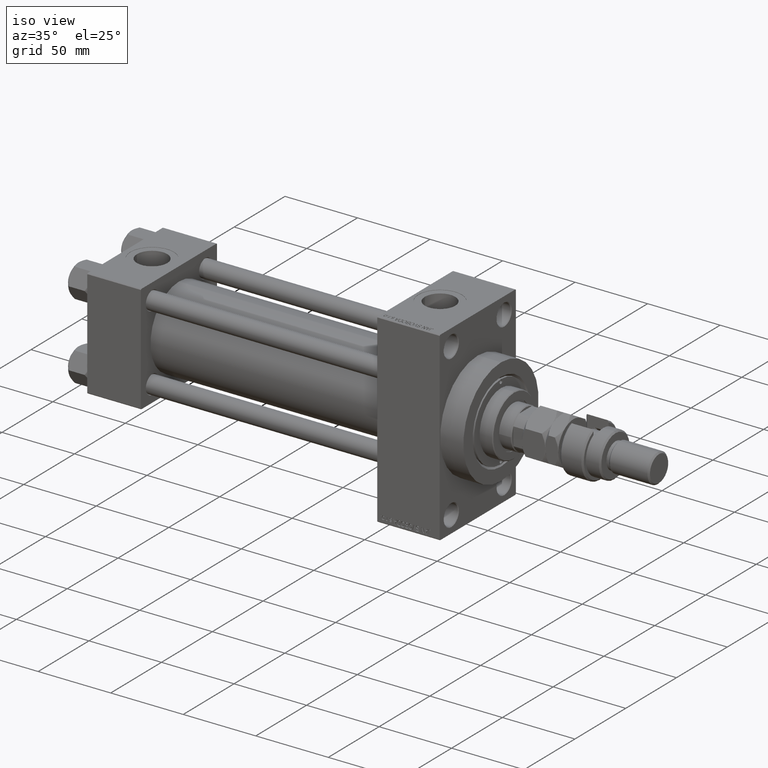
[diagram: clean part render]
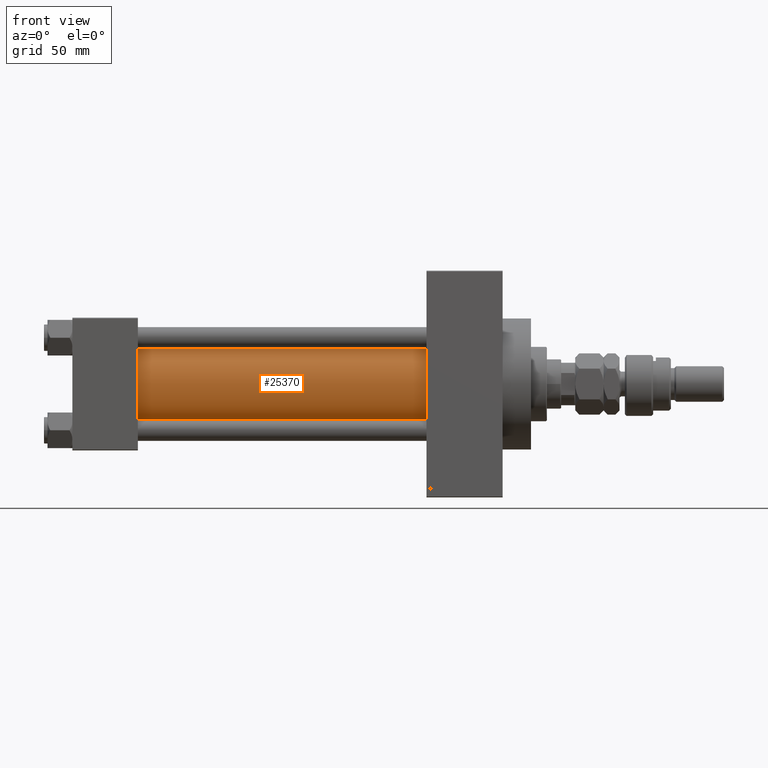
[diagram: tour spotlight — one face highlighted and labeled with its STEP entity id]
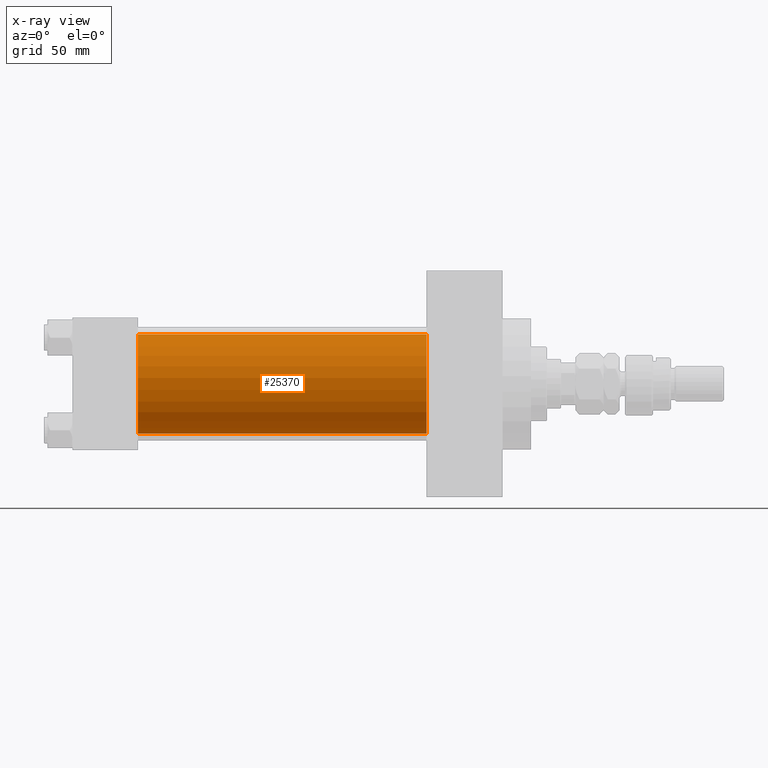
[diagram: x-ray of the same camera — body ghosted, this tour face saturated]
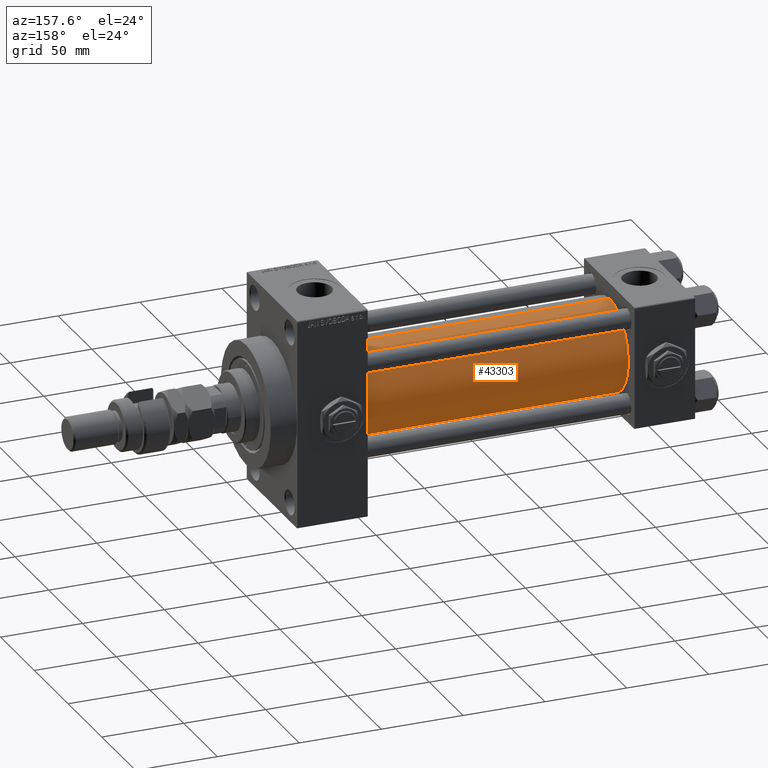
[diagram: tour spotlight — one face highlighted and labeled with its STEP entity id]
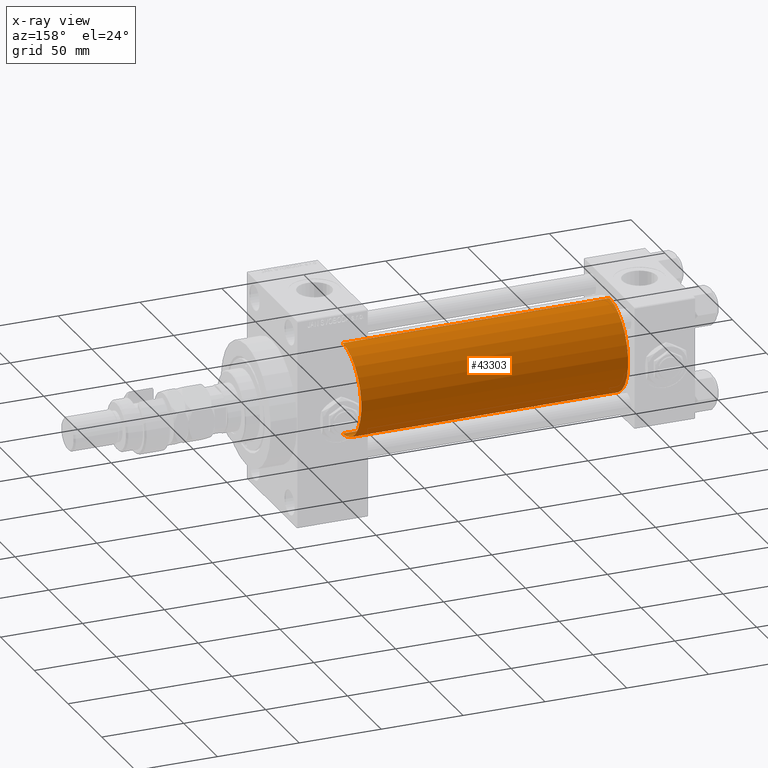
[diagram: x-ray of the same camera — body ghosted, this tour face saturated]
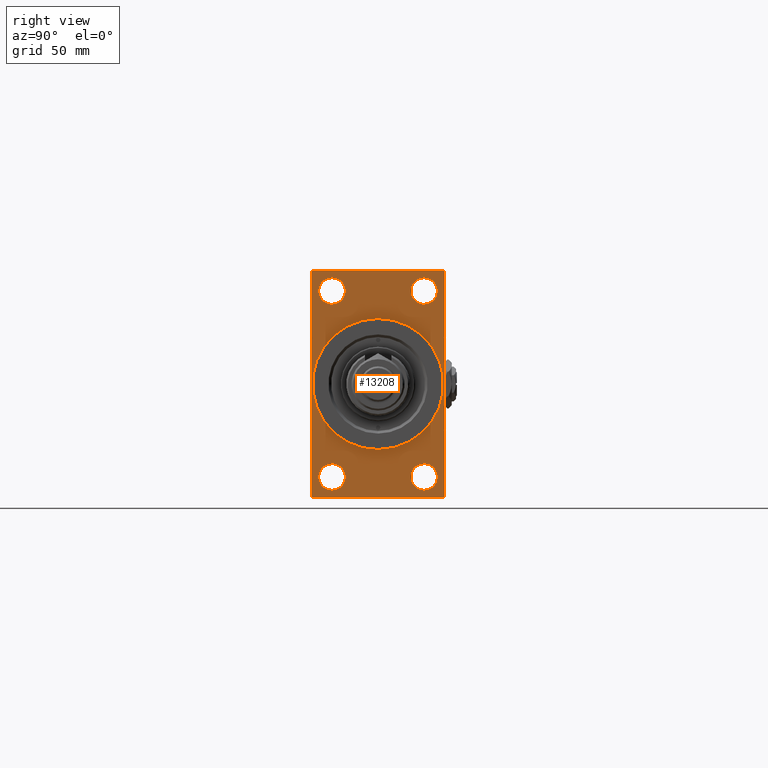
[diagram: tour spotlight — one face highlighted and labeled with its STEP entity id]
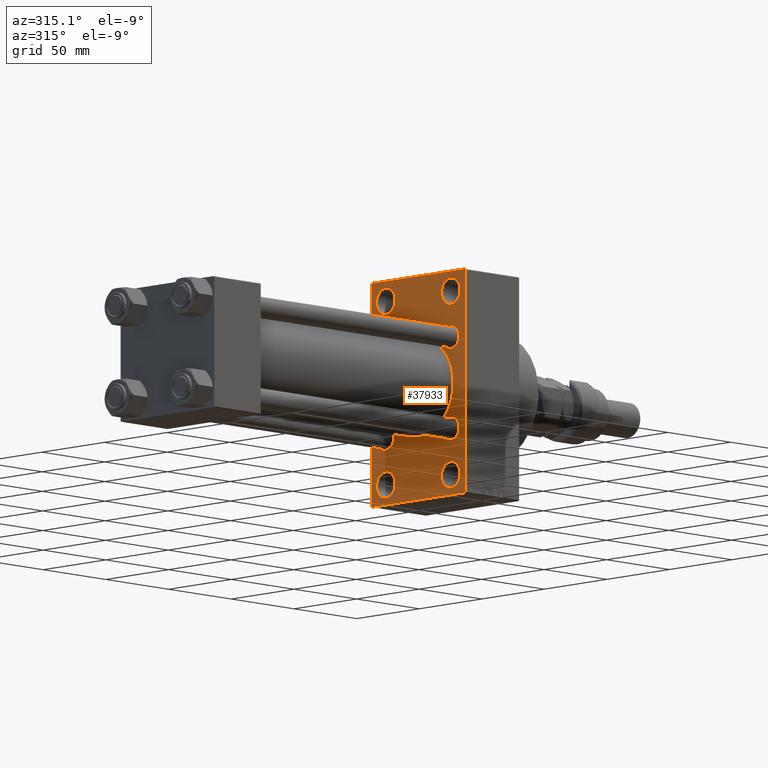
[diagram: tour spotlight — one face highlighted and labeled with its STEP entity id]
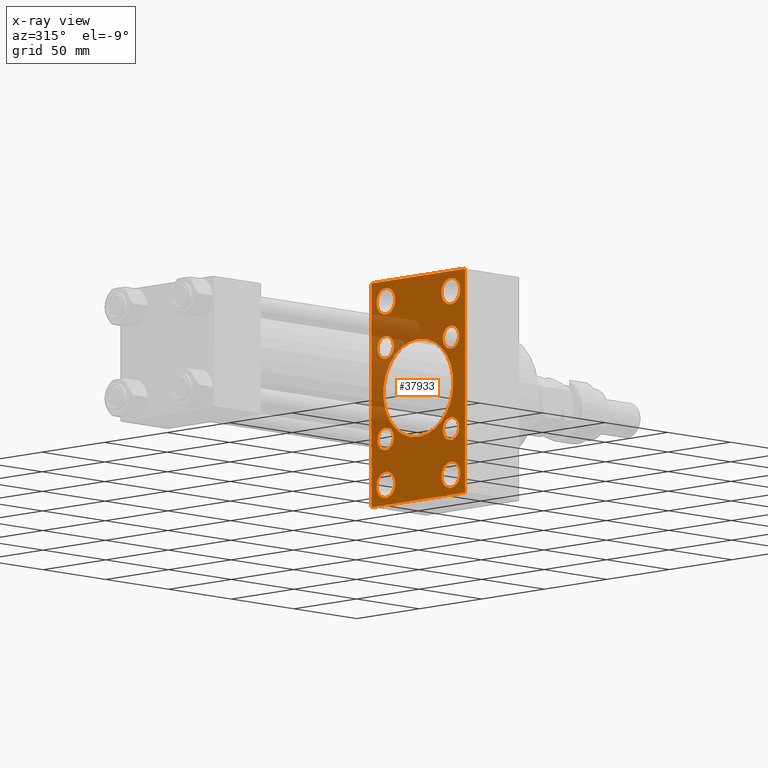
[diagram: x-ray of the same camera — body ghosted, this tour face saturated]
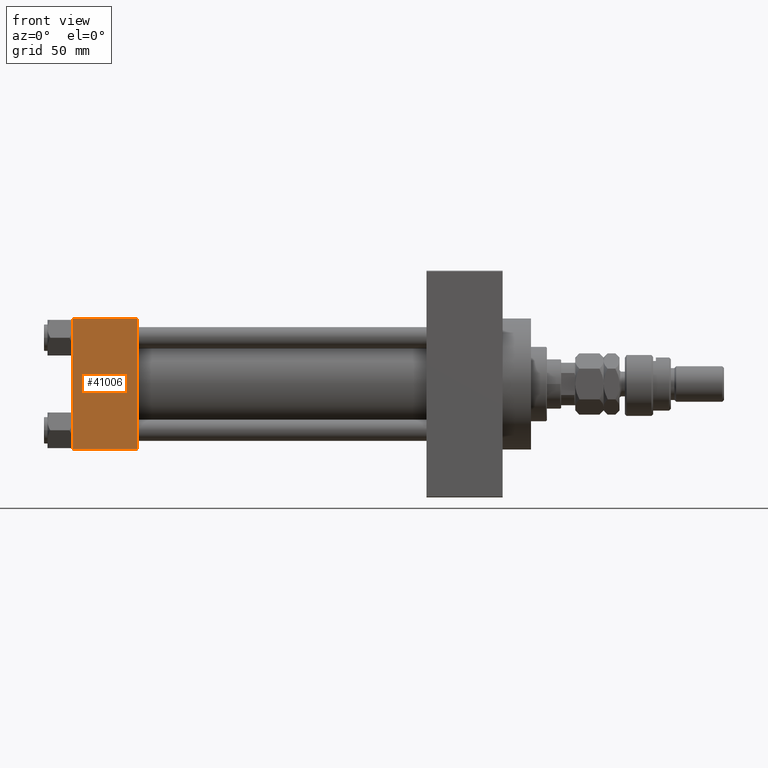
[diagram: tour spotlight — one face highlighted and labeled with its STEP entity id]
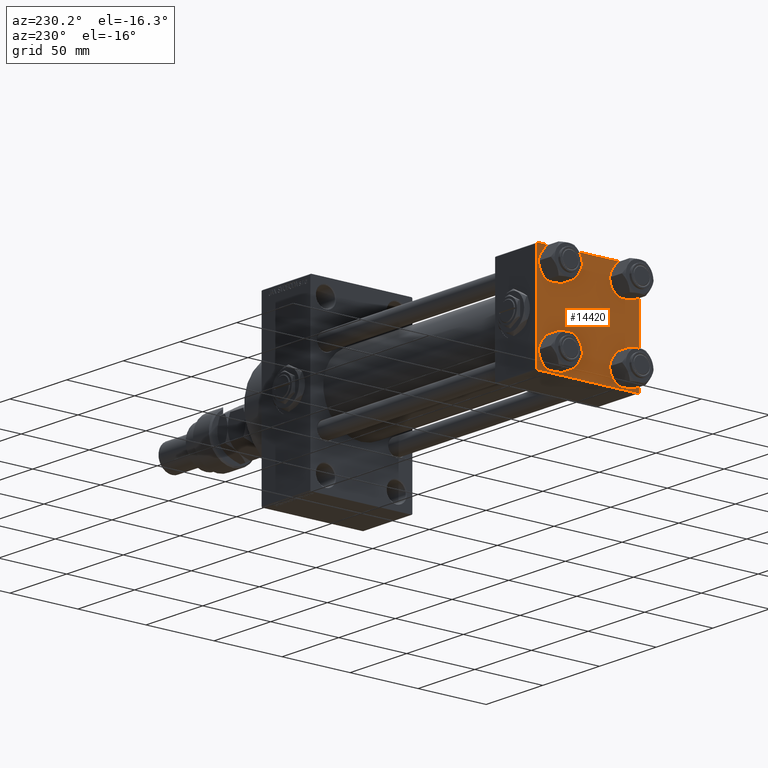
[diagram: tour spotlight — one face highlighted and labeled with its STEP entity id]
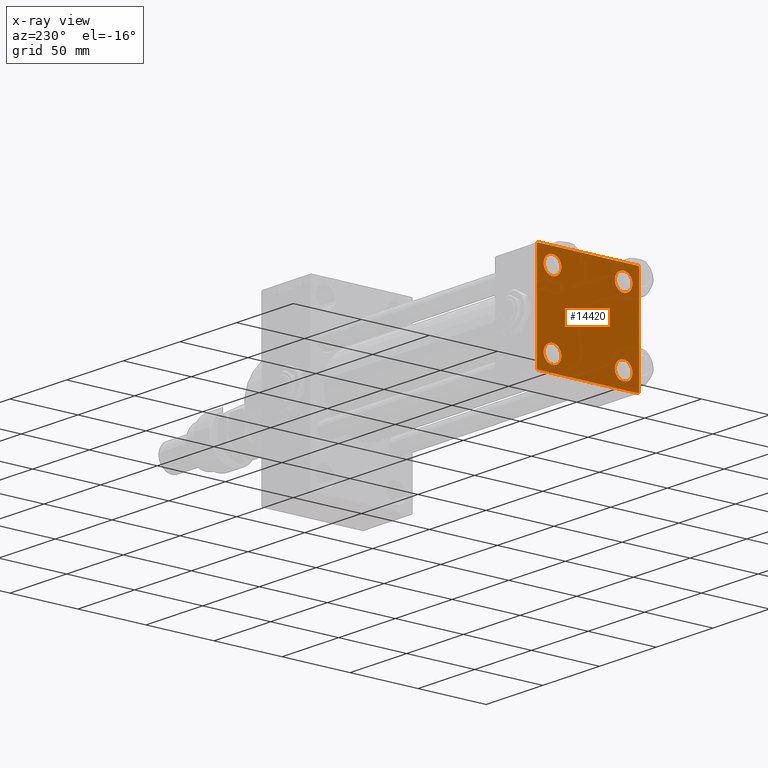
[diagram: x-ray of the same camera — body ghosted, this tour face saturated]
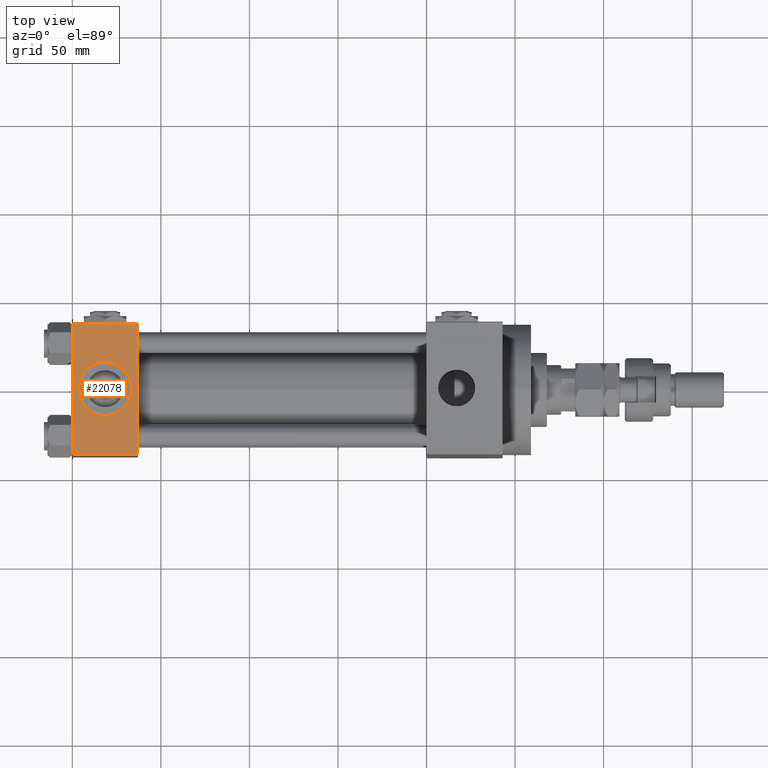
[diagram: tour spotlight — one face highlighted and labeled with its STEP entity id]
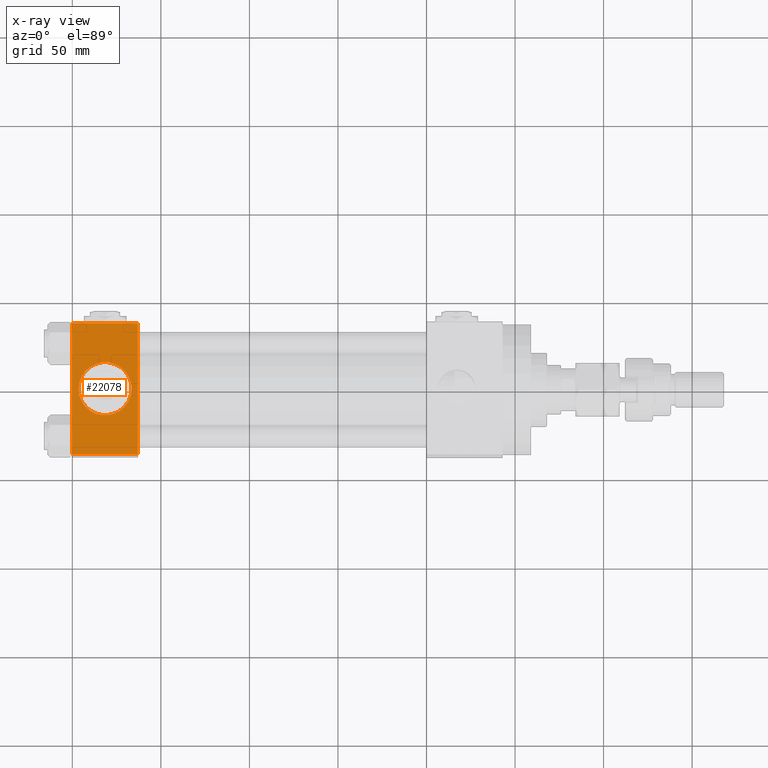
[diagram: x-ray of the same camera — body ghosted, this tour face saturated]
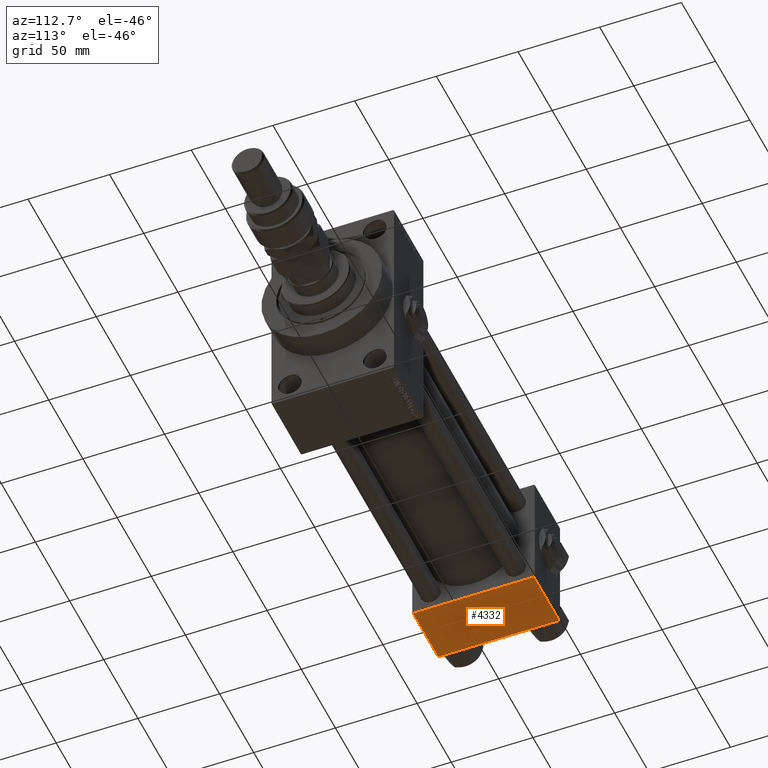
[diagram: tour spotlight — one face highlighted and labeled with its STEP entity id]
A machine part: a face-by-face anatomy tour. The part has 1297 B-rep faces; the first image is the clean iso view, then the 8 largest visible faces are spotlighted one at a time (largest first), each with its STEP entity span.

Face 1 — front view, entity #25370. An x-ray twin of the same camera follows (body ghosted, this face saturated) — the face is partly hidden behind the body. In plain terms, the highlighted cylindrical surface (partial cylindrical patch) has radius 28 mm, axis along (-1, -0, -0).
Definition (entity closure, byte-faithful):
#88 = DIRECTION ( 'NONE',  ( 0.000000000000000000, 0.000000000000000000, 1.000000000000000000 ) ) ;
#2739 = CARTESIAN_POINT ( 'NONE',  ( 200.0000000000000000, -2.602085213965210642E-15, 28.00000000000000000 ) ) ;
#2810 = EDGE_CURVE ( 'NONE', #6402, #41980, #11994, .T. ) ;
#3799 = DIRECTION ( 'NONE',  ( -1.000000000000000000, -0.000000000000000000, -0.000000000000000000 ) ) ;
#4724 = VERTEX_POINT ( 'NONE', #11184 ) ;
#4790 = DIRECTION ( 'NONE',  ( -1.000000000000000000, -0.000000000000000000, -0.000000000000000000 ) ) ;
#6402 = VERTEX_POINT ( 'NONE', #15478 ) ;
#6447 = EDGE_LOOP ( 'NONE', ( #45366, #27111, #7082, #51035 ) ) ;
#7082 = ORIENTED_EDGE ( 'NONE', *, *, #32497, .T. ) ;
#8756 = AXIS2_PLACEMENT_3D ( 'NONE', #23058, #33940, #51128 ) ;
#11184 = CARTESIAN_POINT ( 'NONE',  ( 37.00000000000000711, 8.269258236473784371E-16, -28.00000000000000000 ) ) ;
#11994 = CIRCLE ( 'NONE', #41553, 28.00000000000000000 ) ;
#14694 = CIRCLE ( 'NONE', #8756, 28.00000000000000000 ) ;
#15478 = CARTESIAN_POINT ( 'NONE',  ( 200.0000000000000000, -2.602085213965210642E-15, 28.00000000000000000 ) ) ;
#16270 = VECTOR ( 'NONE', #4790, 1000.000000000000000 ) ;
#18105 = DIRECTION ( 'NONE',  ( -1.000000000000000000, -0.000000000000000000, -0.000000000000000000 ) ) ;
#18385 = VECTOR ( 'NONE', #18105, 1000.000000000000000 ) ;
#22507 = EDGE_CURVE ( 'NONE', #41980, #4724, #36565, .T. ) ;
#23058 = CARTESIAN_POINT ( 'NONE',  ( 37.00000000000000711, -2.602085213965210642E-15, 0.000000000000000000 ) ) ;
#23904 = FACE_OUTER_BOUND ( 'NONE', #6447, .T. ) ;
#24675 = EDGE_CURVE ( 'NONE', #40747, #4724, #14694, .T. ) ;
#25370 = ADVANCED_FACE ( 'NONE', ( #23904 ), #47743, .T. ) ;
#27111 = ORIENTED_EDGE ( 'NONE', *, *, #2810, .F. ) ;
#28386 = CARTESIAN_POINT ( 'NONE',  ( 200.0000000000000000, -2.602085213965210642E-15, 0.000000000000000000 ) ) ;
#32497 = EDGE_CURVE ( 'NONE', #6402, #40747, #38731, .T. ) ;
#32540 = DIRECTION ( 'NONE',  ( 1.000000000000000000, 0.000000000000000000, 0.000000000000000000 ) ) ;
#33940 = DIRECTION ( 'NONE',  ( 1.000000000000000000, -0.000000000000000000, 0.000000000000000000 ) ) ;
#35824 = AXIS2_PLACEMENT_3D ( 'NONE', #28386, #3799, #88 ) ;
#36254 = DIRECTION ( 'NONE',  ( 0.000000000000000000, 0.000000000000000000, -1.000000000000000000 ) ) ;
#36565 = LINE ( 'NONE', #41306, #16270 ) ;
#38731 = LINE ( 'NONE', #2739, #18385 ) ;
#40747 = VERTEX_POINT ( 'NONE', #47538 ) ;
#41306 = CARTESIAN_POINT ( 'NONE',  ( 200.0000000000000000, 8.269258236473784371E-16, -28.00000000000000000 ) ) ;
#41553 = AXIS2_PLACEMENT_3D ( 'NONE', #43672, #32540, #36254 ) ;
#41980 = VERTEX_POINT ( 'NONE', #51924 ) ;
#43672 = CARTESIAN_POINT ( 'NONE',  ( 200.0000000000000000, -2.602085213965210642E-15, 0.000000000000000000 ) ) ;
#45366 = ORIENTED_EDGE ( 'NONE', *, *, #22507, .F. ) ;
#47538 = CARTESIAN_POINT ( 'NONE',  ( 37.00000000000000711, -2.602085213965210642E-15, 28.00000000000000000 ) ) ;
#47743 = CYLINDRICAL_SURFACE ( 'NONE', #35824, 28.00000000000000000 ) ;
#51035 = ORIENTED_EDGE ( 'NONE', *, *, #24675, .T. ) ;
#51128 = DIRECTION ( 'NONE',  ( 0.000000000000000000, 0.000000000000000000, 1.000000000000000000 ) ) ;
#51924 = CARTESIAN_POINT ( 'NONE',  ( 200.0000000000000000, 8.269258236473784371E-16, -28.00000000000000000 ) ) ;

Face 2 — auxiliary view, entity #43303. An x-ray twin of the same camera follows (body ghosted, this face saturated) — the face is partly hidden behind the body. In plain terms, the highlighted cylindrical surface (partial cylindrical patch) has radius 28 mm, axis along (-1, -0, -0).
Definition (entity closure, byte-faithful):
#763 = ORIENTED_EDGE ( 'NONE', *, *, #22507, .T. ) ;
#2739 = CARTESIAN_POINT ( 'NONE',  ( 200.0000000000000000, -2.602085213965210642E-15, 28.00000000000000000 ) ) ;
#4217 = ORIENTED_EDGE ( 'NONE', *, *, #40930, .T. ) ;
#4724 = VERTEX_POINT ( 'NONE', #11184 ) ;
#4790 = DIRECTION ( 'NONE',  ( -1.000000000000000000, -0.000000000000000000, -0.000000000000000000 ) ) ;
#6402 = VERTEX_POINT ( 'NONE', #15478 ) ;
#7242 = DIRECTION ( 'NONE',  ( 0.000000000000000000, 0.000000000000000000, 1.000000000000000000 ) ) ;
#7979 = DIRECTION ( 'NONE',  ( -1.000000000000000000, -0.000000000000000000, -0.000000000000000000 ) ) ;
#8232 = AXIS2_PLACEMENT_3D ( 'NONE', #9707, #49144, #12896 ) ;
#8370 = EDGE_CURVE ( 'NONE', #41980, #6402, #38654, .T. ) ;
#9707 = CARTESIAN_POINT ( 'NONE',  ( 200.0000000000000000, -2.602085213965210642E-15, 0.000000000000000000 ) ) ;
#11053 = AXIS2_PLACEMENT_3D ( 'NONE', #45275, #7979, #36554 ) ;
#11184 = CARTESIAN_POINT ( 'NONE',  ( 37.00000000000000711, 8.269258236473784371E-16, -28.00000000000000000 ) ) ;
#12896 = DIRECTION ( 'NONE',  ( 0.000000000000000000, 0.000000000000000000, -1.000000000000000000 ) ) ;
#15478 = CARTESIAN_POINT ( 'NONE',  ( 200.0000000000000000, -2.602085213965210642E-15, 28.00000000000000000 ) ) ;
#15704 = DIRECTION ( 'NONE',  ( 1.000000000000000000, -0.000000000000000000, 0.000000000000000000 ) ) ;
#16270 = VECTOR ( 'NONE', #4790, 1000.000000000000000 ) ;
#16397 = EDGE_LOOP ( 'NONE', ( #36964, #763, #4217, #43154 ) ) ;
#18105 = DIRECTION ( 'NONE',  ( -1.000000000000000000, -0.000000000000000000, -0.000000000000000000 ) ) ;
#18385 = VECTOR ( 'NONE', #18105, 1000.000000000000000 ) ;
#22507 = EDGE_CURVE ( 'NONE', #41980, #4724, #36565, .T. ) ;
#32067 = FACE_OUTER_BOUND ( 'NONE', #16397, .T. ) ;
#32497 = EDGE_CURVE ( 'NONE', #6402, #40747, #38731, .T. ) ;
#36554 = DIRECTION ( 'NONE',  ( 0.000000000000000000, 0.000000000000000000, 1.000000000000000000 ) ) ;
#36565 = LINE ( 'NONE', #41306, #16270 ) ;
#36964 = ORIENTED_EDGE ( 'NONE', *, *, #8370, .F. ) ;
#38654 = CIRCLE ( 'NONE', #8232, 28.00000000000000000 ) ;
#38731 = LINE ( 'NONE', #2739, #18385 ) ;
#39713 = AXIS2_PLACEMENT_3D ( 'NONE', #51975, #15704, #7242 ) ;
#40747 = VERTEX_POINT ( 'NONE', #47538 ) ;
#40930 = EDGE_CURVE ( 'NONE', #4724, #40747, #49843, .T. ) ;
#41306 = CARTESIAN_POINT ( 'NONE',  ( 200.0000000000000000, 8.269258236473784371E-16, -28.00000000000000000 ) ) ;
#41980 = VERTEX_POINT ( 'NONE', #51924 ) ;
#43154 = ORIENTED_EDGE ( 'NONE', *, *, #32497, .F. ) ;
#43303 = ADVANCED_FACE ( 'NONE', ( #32067 ), #45020, .T. ) ;
#45020 = CYLINDRICAL_SURFACE ( 'NONE', #11053, 28.00000000000000000 ) ;
#45275 = CARTESIAN_POINT ( 'NONE',  ( 200.0000000000000000, -2.602085213965210642E-15, 0.000000000000000000 ) ) ;
#47538 = CARTESIAN_POINT ( 'NONE',  ( 37.00000000000000711, -2.602085213965210642E-15, 28.00000000000000000 ) ) ;
#49144 = DIRECTION ( 'NONE',  ( 1.000000000000000000, 0.000000000000000000, 0.000000000000000000 ) ) ;
#49843 = CIRCLE ( 'NONE', #39713, 28.00000000000000000 ) ;
#51924 = CARTESIAN_POINT ( 'NONE',  ( 200.0000000000000000, 8.269258236473784371E-16, -28.00000000000000000 ) ) ;
#51975 = CARTESIAN_POINT ( 'NONE',  ( 37.00000000000000711, -2.602085213965210642E-15, 0.000000000000000000 ) ) ;

Face 3 — right view, entity #13208. In plain terms, the highlighted planar face has unit normal (-1, 0, 0).
Definition (entity closure, byte-faithful):
#419 = FACE_BOUND ( 'NONE', #27946, .T. ) ;
#448 = CARTESIAN_POINT ( 'NONE',  ( 243.0000000000000000, -25.99999999999999645, -52.49999999999999289 ) ) ;
#706 = EDGE_CURVE ( 'NONE', #36182, #7768, #27122, .T. ) ;
#973 = VERTEX_POINT ( 'NONE', #41703 ) ;
#1913 = CARTESIAN_POINT ( 'NONE',  ( 243.0000000000000000, -25.99999999999999645, -44.99999999999995737 ) ) ;
#2417 = VERTEX_POINT ( 'NONE', #34502 ) ;
#2423 = CIRCLE ( 'NONE', #4114, 7.500000000000034639 ) ;
#2440 = CARTESIAN_POINT ( 'NONE',  ( 243.0000000000000000, 4.531193156845206793E-15, -37.00000000000000000 ) ) ;
#2622 = EDGE_CURVE ( 'NONE', #29011, #973, #39428, .T. ) ;
#2642 = CIRCLE ( 'NONE', #28004, 7.500000000000034639 ) ;
#3100 = ORIENTED_EDGE ( 'NONE', *, *, #41877, .T. ) ;
#3412 = LINE ( 'NONE', #32258, #33759 ) ;
#3576 = EDGE_CURVE ( 'NONE', #29011, #7602, #25456, .T. ) ;
#3976 = DIRECTION ( 'NONE',  ( 1.000000000000000000, 0.000000000000000000, 0.000000000000000000 ) ) ;
#4079 = DIRECTION ( 'NONE',  ( 0.000000000000000000, 0.000000000000000000, 1.000000000000000000 ) ) ;
#4114 = AXIS2_PLACEMENT_3D ( 'NONE', #30816, #46948, #43507 ) ;
#4585 = CARTESIAN_POINT ( 'NONE',  ( 243.0000000000000000, -25.99999999999999645, 44.99999999999996447 ) ) ;
#4771 = CARTESIAN_POINT ( 'NONE',  ( 243.0000000000000000, -37.49999999999999289, 63.50000000000000000 ) ) ;
#5124 = EDGE_LOOP ( 'NONE', ( #51427, #10928, #32549, #31834, #26488, #42448, #22060, #18611 ) ) ;
#5606 = EDGE_CURVE ( 'NONE', #14890, #25549, #28513, .T. ) ;
#5893 = DIRECTION ( 'NONE',  ( 0.000000000000000000, -1.000000000000000000, -1.850371707708594563E-16 ) ) ;
#6587 = EDGE_CURVE ( 'NONE', #40806, #29393, #37856, .T. ) ;
#6924 = EDGE_CURVE ( 'NONE', #29393, #40806, #38687, .T. ) ;
#7411 = DIRECTION ( 'NONE',  ( 0.000000000000000000, 0.000000000000000000, 1.000000000000000000 ) ) ;
#7602 = VERTEX_POINT ( 'NONE', #28418 ) ;
#7740 = DIRECTION ( 'NONE',  ( 1.000000000000000000, 0.000000000000000000, 0.000000000000000000 ) ) ;
#7768 = VERTEX_POINT ( 'NONE', #37085 ) ;
#7803 = VECTOR ( 'NONE', #5893, 1000.000000000000000 ) ;
#7951 = DIRECTION ( 'NONE',  ( 0.000000000000000000, 0.000000000000000000, -1.000000000000000000 ) ) ;
#8138 = CARTESIAN_POINT ( 'NONE',  ( 243.0000000000000000, 37.00000000000004974, -64.00000000000000000 ) ) ;
#9310 = LINE ( 'NONE', #21229, #34856 ) ;
#9371 = EDGE_CURVE ( 'NONE', #25549, #14890, #23493, .T. ) ;
#10816 = AXIS2_PLACEMENT_3D ( 'NONE', #32918, #40323, #4079 ) ;
#10818 = LINE ( 'NONE', #47591, #51280 ) ;
#10928 = ORIENTED_EDGE ( 'NONE', *, *, #46230, .T. ) ;
#11078 = DIRECTION ( 'NONE',  ( 0.000000000000000000, -5.421010862427522170E-17, -1.000000000000000000 ) ) ;
#11227 = EDGE_CURVE ( 'NONE', #7768, #36182, #2423, .T. ) ;
#11278 = ORIENTED_EDGE ( 'NONE', *, *, #706, .T. ) ;
#12361 = DIRECTION ( 'NONE',  ( 0.000000000000000000, 0.000000000000000000, 1.000000000000000000 ) ) ;
#13206 = DIRECTION ( 'NONE',  ( -1.000000000000000000, 0.000000000000000000, -0.000000000000000000 ) ) ;
#13208 = ADVANCED_FACE ( 'NONE', ( #16552, #419, #25261, #36416, #24486, #40906 ), #45147, .F. ) ;
#13612 = AXIS2_PLACEMENT_3D ( 'NONE', #26656, #23468, #39610 ) ;
#14469 = CARTESIAN_POINT ( 'NONE',  ( 243.0000000000000000, -37.49999999999999289, 63.50000000000000000 ) ) ;
#14890 = VERTEX_POINT ( 'NONE', #34286 ) ;
#15319 = CARTESIAN_POINT ( 'NONE',  ( 243.0000000000000000, -37.49999999999999289, -63.50000000000002842 ) ) ;
#16279 = AXIS2_PLACEMENT_3D ( 'NONE', #27250, #19844, #7411 ) ;
#16552 = FACE_BOUND ( 'NONE', #33508, .T. ) ;
#16749 = DIRECTION ( 'NONE',  ( 0.000000000000000000, 0.000000000000000000, 1.000000000000000000 ) ) ;
#16870 = EDGE_CURVE ( 'NONE', #33456, #41179, #2642, .T. ) ;
#16889 = CARTESIAN_POINT ( 'NONE',  ( 243.0000000000000000, 26.00000000000000000, 60.00000000000002842 ) ) ;
#17277 = DIRECTION ( 'NONE',  ( -1.000000000000000000, 0.000000000000000000, -0.000000000000000000 ) ) ;
#17342 = DIRECTION ( 'NONE',  ( -0.000000000000000000, 0.000000000000000000, 1.000000000000000000 ) ) ;
#17473 = VERTEX_POINT ( 'NONE', #38083 ) ;
#17483 = CARTESIAN_POINT ( 'NONE',  ( 243.0000000000000000, 26.00000000000000000, -52.49999999999999289 ) ) ;
#17924 = VECTOR ( 'NONE', #19330, 999.9999999999998863 ) ;
#18611 = ORIENTED_EDGE ( 'NONE', *, *, #23256, .T. ) ;
#18843 = CARTESIAN_POINT ( 'NONE',  ( 243.0000000000000000, -37.49999999999999289, 63.99999999999997158 ) ) ;
#19154 = ORIENTED_EDGE ( 'NONE', *, *, #49793, .T. ) ;
#19330 = DIRECTION ( 'NONE',  ( -0.000000000000000000, 0.7071067811865574537, 0.7071067811865376918 ) ) ;
#19459 = ORIENTED_EDGE ( 'NONE', *, *, #11227, .T. ) ;
#19844 = DIRECTION ( 'NONE',  ( -1.000000000000000000, 0.000000000000000000, -0.000000000000000000 ) ) ;
#21229 = CARTESIAN_POINT ( 'NONE',  ( 243.0000000000000000, -37.00000000000002132, -64.00000000000001421 ) ) ;
#21362 = AXIS2_PLACEMENT_3D ( 'NONE', #33331, #13206, #29336 ) ;
#22060 = ORIENTED_EDGE ( 'NONE', *, *, #36135, .T. ) ;
#22406 = ORIENTED_EDGE ( 'NONE', *, *, #5606, .F. ) ;
#23092 = DIRECTION ( 'NONE',  ( 0.000000000000000000, 0.000000000000000000, -1.000000000000000000 ) ) ;
#23256 = EDGE_CURVE ( 'NONE', #31051, #38900, #50729, .T. ) ;
#23373 = ORIENTED_EDGE ( 'NONE', *, *, #6924, .T. ) ;
#23468 = DIRECTION ( 'NONE',  ( -1.000000000000000000, 0.000000000000000000, -0.000000000000000000 ) ) ;
#23493 = CIRCLE ( 'NONE', #36982, 37.00000000000000000 ) ;
#23822 = CARTESIAN_POINT ( 'NONE',  ( 243.0000000000000000, 0.000000000000000000, 0.000000000000000000 ) ) ;
#23989 = CIRCLE ( 'NONE', #21362, 7.500000000000034639 ) ;
#24486 = FACE_BOUND ( 'NONE', #50398, .T. ) ;
#24564 = EDGE_CURVE ( 'NONE', #38900, #24931, #42403, .T. ) ;
#24931 = VERTEX_POINT ( 'NONE', #15319 ) ;
#25261 = FACE_BOUND ( 'NONE', #41113, .T. ) ;
#25348 = VERTEX_POINT ( 'NONE', #4585 ) ;
#25456 = LINE ( 'NONE', #30233, #7803 ) ;
#25549 = VERTEX_POINT ( 'NONE', #2440 ) ;
#25631 = VECTOR ( 'NONE', #34995, 1000.000000000000000 ) ;
#25909 = AXIS2_PLACEMENT_3D ( 'NONE', #17483, #34175, #30183 ) ;
#26488 = ORIENTED_EDGE ( 'NONE', *, *, #28905, .F. ) ;
#26656 = CARTESIAN_POINT ( 'NONE',  ( 243.0000000000000000, 26.00000000000000000, 52.49999999999999289 ) ) ;
#26697 = EDGE_CURVE ( 'NONE', #32871, #2417, #27991, .T. ) ;
#27122 = CIRCLE ( 'NONE', #13612, 7.500000000000034639 ) ;
#27250 = CARTESIAN_POINT ( 'NONE',  ( 243.0000000000000000, -25.99999999999999645, 52.50000000000000000 ) ) ;
#27946 = EDGE_LOOP ( 'NONE', ( #30588, #3100 ) ) ;
#27991 = LINE ( 'NONE', #36222, #51075 ) ;
#27999 = DIRECTION ( 'NONE',  ( 0.000000000000000000, -1.000000000000000000, -1.850371707708594563E-16 ) ) ;
#28004 = AXIS2_PLACEMENT_3D ( 'NONE', #448, #32475, #12361 ) ;
#28418 = CARTESIAN_POINT ( 'NONE',  ( 243.0000000000000000, -37.00000000000002132, -64.00000000000001421 ) ) ;
#28513 = CIRCLE ( 'NONE', #41217, 37.00000000000000000 ) ;
#28905 = EDGE_CURVE ( 'NONE', #32871, #973, #10818, .T. ) ;
#28965 = VECTOR ( 'NONE', #30611, 1000.000000000000000 ) ;
#29011 = VERTEX_POINT ( 'NONE', #8138 ) ;
#29336 = DIRECTION ( 'NONE',  ( 0.000000000000000000, 0.000000000000000000, 1.000000000000000000 ) ) ;
#29393 = VERTEX_POINT ( 'NONE', #39712 ) ;
#30183 = DIRECTION ( 'NONE',  ( 0.000000000000000000, 0.000000000000000000, 1.000000000000000000 ) ) ;
#30233 = CARTESIAN_POINT ( 'NONE',  ( 243.0000000000000000, 37.49999999999999289, -64.00000000000000000 ) ) ;
#30588 = ORIENTED_EDGE ( 'NONE', *, *, #16870, .T. ) ;
#30611 = DIRECTION ( 'NONE',  ( -0.000000000000000000, -0.7071067811865524577, -0.7071067811865426878 ) ) ;
#30816 = CARTESIAN_POINT ( 'NONE',  ( 243.0000000000000000, 26.00000000000000000, 52.49999999999999289 ) ) ;
#31051 = VERTEX_POINT ( 'NONE', #44806 ) ;
#31834 = ORIENTED_EDGE ( 'NONE', *, *, #2622, .T. ) ;
#32258 = CARTESIAN_POINT ( 'NONE',  ( 243.0000000000000000, 37.50000000000000000, 63.99999999999998579 ) ) ;
#32475 = DIRECTION ( 'NONE',  ( -1.000000000000000000, 0.000000000000000000, -0.000000000000000000 ) ) ;
#32509 = DIRECTION ( 'NONE',  ( 0.000000000000000000, -0.7071067811865474617, 0.7071067811865474617 ) ) ;
#32549 = ORIENTED_EDGE ( 'NONE', *, *, #3576, .F. ) ;
#32871 = VERTEX_POINT ( 'NONE', #43938 ) ;
#32918 = CARTESIAN_POINT ( 'NONE',  ( 243.0000000000000000, 26.00000000000000000, -52.49999999999999289 ) ) ;
#33331 = CARTESIAN_POINT ( 'NONE',  ( 243.0000000000000000, -25.99999999999999645, 52.50000000000000000 ) ) ;
#33456 = VERTEX_POINT ( 'NONE', #37096 ) ;
#33508 = EDGE_LOOP ( 'NONE', ( #19154, #46741 ) ) ;
#33759 = VECTOR ( 'NONE', #27999, 1000.000000000000000 ) ;
#34175 = DIRECTION ( 'NONE',  ( -1.000000000000000000, 0.000000000000000000, -0.000000000000000000 ) ) ;
#34286 = CARTESIAN_POINT ( 'NONE',  ( 243.0000000000000000, 0.000000000000000000, 37.00000000000000000 ) ) ;
#34502 = CARTESIAN_POINT ( 'NONE',  ( 243.0000000000000000, 37.00000000000000000, 63.99999999999998579 ) ) ;
#34856 = VECTOR ( 'NONE', #37097, 1000.000000000000114 ) ;
#34995 = DIRECTION ( 'NONE',  ( 0.000000000000000000, 0.000000000000000000, -1.000000000000000000 ) ) ;
#35010 = CIRCLE ( 'NONE', #16279, 7.500000000000034639 ) ;
#35028 = CARTESIAN_POINT ( 'NONE',  ( 243.0000000000000000, 0.000000000000000000, 0.000000000000000000 ) ) ;
#35940 = ORIENTED_EDGE ( 'NONE', *, *, #9371, .F. ) ;
#36135 = EDGE_CURVE ( 'NONE', #2417, #31051, #3412, .T. ) ;
#36182 = VERTEX_POINT ( 'NONE', #16889 ) ;
#36222 = CARTESIAN_POINT ( 'NONE',  ( 243.0000000000000000, 37.00000000000000000, 63.99999999999998579 ) ) ;
#36416 = FACE_BOUND ( 'NONE', #46201, .T. ) ;
#36928 = CARTESIAN_POINT ( 'NONE',  ( 243.0000000000000000, 0.000000000000000000, 0.000000000000000000 ) ) ;
#36982 = AXIS2_PLACEMENT_3D ( 'NONE', #23822, #3976, #7951 ) ;
#37085 = CARTESIAN_POINT ( 'NONE',  ( 243.0000000000000000, 26.00000000000000000, 44.99999999999995737 ) ) ;
#37096 = CARTESIAN_POINT ( 'NONE',  ( 243.0000000000000000, -25.99999999999999645, -60.00000000000002842 ) ) ;
#37097 = DIRECTION ( 'NONE',  ( 0.000000000000000000, 0.7071067811865376918, -0.7071067811865573427 ) ) ;
#37144 = ORIENTED_EDGE ( 'NONE', *, *, #6587, .T. ) ;
#37856 = CIRCLE ( 'NONE', #10816, 7.500000000000034639 ) ;
#38083 = CARTESIAN_POINT ( 'NONE',  ( 243.0000000000000000, -25.99999999999999645, 60.00000000000003553 ) ) ;
#38687 = CIRCLE ( 'NONE', #25909, 7.500000000000034639 ) ;
#38900 = VERTEX_POINT ( 'NONE', #4771 ) ;
#39428 = LINE ( 'NONE', #43149, #17924 ) ;
#39610 = DIRECTION ( 'NONE',  ( 0.000000000000000000, 0.000000000000000000, 1.000000000000000000 ) ) ;
#39712 = CARTESIAN_POINT ( 'NONE',  ( 243.0000000000000000, 26.00000000000000000, -44.99999999999995737 ) ) ;
#40323 = DIRECTION ( 'NONE',  ( -1.000000000000000000, 0.000000000000000000, -0.000000000000000000 ) ) ;
#40806 = VERTEX_POINT ( 'NONE', #48834 ) ;
#40906 = FACE_OUTER_BOUND ( 'NONE', #5124, .T. ) ;
#41113 = EDGE_LOOP ( 'NONE', ( #37144, #23373 ) ) ;
#41179 = VERTEX_POINT ( 'NONE', #1913 ) ;
#41217 = AXIS2_PLACEMENT_3D ( 'NONE', #35028, #7740, #23092 ) ;
#41351 = CARTESIAN_POINT ( 'NONE',  ( 243.0000000000000000, -25.99999999999999645, -52.49999999999999289 ) ) ;
#41703 = CARTESIAN_POINT ( 'NONE',  ( 243.0000000000000000, 37.49999999999999289, -63.50000000000007105 ) ) ;
#41877 = EDGE_CURVE ( 'NONE', #41179, #33456, #43987, .T. ) ;
#42297 = AXIS2_PLACEMENT_3D ( 'NONE', #41351, #17277, #16749 ) ;
#42403 = LINE ( 'NONE', #18843, #25631 ) ;
#42448 = ORIENTED_EDGE ( 'NONE', *, *, #26697, .T. ) ;
#43149 = CARTESIAN_POINT ( 'NONE',  ( 243.0000000000000000, 37.49999999999999289, -63.50000000000007105 ) ) ;
#43507 = DIRECTION ( 'NONE',  ( 0.000000000000000000, 0.000000000000000000, 1.000000000000000000 ) ) ;
#43938 = CARTESIAN_POINT ( 'NONE',  ( 243.0000000000000000, 37.50000000000000000, 63.49999999999998579 ) ) ;
#43987 = CIRCLE ( 'NONE', #42297, 7.500000000000034639 ) ;
#44769 = AXIS2_PLACEMENT_3D ( 'NONE', #36928, #45397, #17342 ) ;
#44806 = CARTESIAN_POINT ( 'NONE',  ( 243.0000000000000000, -37.00000000000001421, 63.99999999999997158 ) ) ;
#45147 = PLANE ( 'NONE',  #44769 ) ;
#45397 = DIRECTION ( 'NONE',  ( -1.000000000000000000, 0.000000000000000000, -0.000000000000000000 ) ) ;
#46201 = EDGE_LOOP ( 'NONE', ( #19459, #11278 ) ) ;
#46230 = EDGE_CURVE ( 'NONE', #24931, #7602, #9310, .T. ) ;
#46741 = ORIENTED_EDGE ( 'NONE', *, *, #49490, .T. ) ;
#46948 = DIRECTION ( 'NONE',  ( -1.000000000000000000, 0.000000000000000000, -0.000000000000000000 ) ) ;
#47591 = CARTESIAN_POINT ( 'NONE',  ( 243.0000000000000000, 37.50000000000000000, 63.99999999999998579 ) ) ;
#48834 = CARTESIAN_POINT ( 'NONE',  ( 243.0000000000000000, 26.00000000000000000, -60.00000000000002842 ) ) ;
#49490 = EDGE_CURVE ( 'NONE', #17473, #25348, #35010, .T. ) ;
#49793 = EDGE_CURVE ( 'NONE', #25348, #17473, #23989, .T. ) ;
#50398 = EDGE_LOOP ( 'NONE', ( #22406, #35940 ) ) ;
#50729 = LINE ( 'NONE', #14469, #28965 ) ;
#51075 = VECTOR ( 'NONE', #32509, 1000.000000000000114 ) ;
#51280 = VECTOR ( 'NONE', #11078, 1000.000000000000000 ) ;
#51427 = ORIENTED_EDGE ( 'NONE', *, *, #24564, .T. ) ;

Face 4 — auxiliary view, entity #37933. An x-ray twin of the same camera follows (body ghosted, this face saturated) — the face is partly hidden behind the body. In plain terms, the highlighted planar face has unit normal (-1, 0, 0).
Definition (entity closure, byte-faithful):
#42 = EDGE_LOOP ( 'NONE', ( #48229, #36263, #9356, #37814, #49005, #50327, #23823, #50070 ) ) ;
#46 = DIRECTION ( 'NONE',  ( 0.000000000000000000, 0.000000000000000000, 1.000000000000000000 ) ) ;
#231 = CARTESIAN_POINT ( 'NONE',  ( 200.0000000000000000, 37.00000000000000000, 63.99999999999998579 ) ) ;
#430 = EDGE_CURVE ( 'NONE', #27119, #23393, #51077, .T. ) ;
#1165 = EDGE_LOOP ( 'NONE', ( #43213, #17536 ) ) ;
#1367 = CARTESIAN_POINT ( 'NONE',  ( 200.0000000000000000, 26.00000000000000000, -52.49999999999999289 ) ) ;
#1683 = VERTEX_POINT ( 'NONE', #10082 ) ;
#1814 = EDGE_CURVE ( 'NONE', #28174, #19553, #16999, .T. ) ;
#1835 = EDGE_CURVE ( 'NONE', #31237, #13672, #23277, .T. ) ;
#2462 = CIRCLE ( 'NONE', #22742, 6.500000000000008882 ) ;
#2573 = DIRECTION ( 'NONE',  ( 0.000000000000000000, 0.000000000000000000, 1.000000000000000000 ) ) ;
#2795 = CIRCLE ( 'NONE', #8725, 7.500000000000007105 ) ;
#2810 = EDGE_CURVE ( 'NONE', #6402, #41980, #11994, .T. ) ;
#2986 = CARTESIAN_POINT ( 'NONE',  ( 200.0000000000000000, 26.14999999999999858, -26.15000000000000213 ) ) ;
#2989 = CARTESIAN_POINT ( 'NONE',  ( 200.0000000000000000, 26.00000000000000000, 44.99999999999998579 ) ) ;
#3276 = CARTESIAN_POINT ( 'NONE',  ( 200.0000000000000000, 26.14999999999999858, -32.65000000000001279 ) ) ;
#3581 = CIRCLE ( 'NONE', #50057, 6.500000000000008882 ) ;
#4358 = EDGE_CURVE ( 'NONE', #19059, #23393, #25535, .T. ) ;
#4402 = CARTESIAN_POINT ( 'NONE',  ( 200.0000000000000000, 26.00000000000000000, -52.49999999999999289 ) ) ;
#4878 = ORIENTED_EDGE ( 'NONE', *, *, #13152, .T. ) ;
#4912 = DIRECTION ( 'NONE',  ( 0.000000000000000000, 0.000000000000000000, 1.000000000000000000 ) ) ;
#5115 = CARTESIAN_POINT ( 'NONE',  ( 200.0000000000000000, 26.00000000000000000, 52.49999999999999289 ) ) ;
#5347 = EDGE_CURVE ( 'NONE', #15195, #40878, #44585, .T. ) ;
#5348 = DIRECTION ( 'NONE',  ( 1.000000000000000000, -0.000000000000000000, 0.000000000000000000 ) ) ;
#5635 = AXIS2_PLACEMENT_3D ( 'NONE', #32102, #7233, #38293 ) ;
#5656 = CIRCLE ( 'NONE', #9894, 7.500000000000007105 ) ;
#5660 = CARTESIAN_POINT ( 'NONE',  ( 200.0000000000000000, -25.99999999999999645, 52.50000000000000000 ) ) ;
#6402 = VERTEX_POINT ( 'NONE', #15478 ) ;
#6514 = EDGE_LOOP ( 'NONE', ( #4878, #22814 ) ) ;
#6540 = EDGE_CURVE ( 'NONE', #19059, #27704, #12543, .T. ) ;
#6611 = CARTESIAN_POINT ( 'NONE',  ( 200.0000000000000000, -50.50000000000054001, -50.49999999999913314 ) ) ;
#7032 = VECTOR ( 'NONE', #16074, 1000.000000000000000 ) ;
#7191 = CARTESIAN_POINT ( 'NONE',  ( 200.0000000000000000, -37.00000000000001421, 63.99999999999997158 ) ) ;
#7233 = DIRECTION ( 'NONE',  ( 1.000000000000000000, -0.000000000000000000, 0.000000000000000000 ) ) ;
#7652 = CARTESIAN_POINT ( 'NONE',  ( 200.0000000000000000, 37.50000000000000000, 63.99999999999998579 ) ) ;
#7708 = EDGE_CURVE ( 'NONE', #36758, #27324, #49603, .T. ) ;
#7723 = DIRECTION ( 'NONE',  ( 1.000000000000000000, -0.000000000000000000, 0.000000000000000000 ) ) ;
#7870 = CIRCLE ( 'NONE', #21396, 6.500000000000008882 ) ;
#8031 = AXIS2_PLACEMENT_3D ( 'NONE', #4402, #29781, #4912 ) ;
#8232 = AXIS2_PLACEMENT_3D ( 'NONE', #9707, #49144, #12896 ) ;
#8370 = EDGE_CURVE ( 'NONE', #41980, #6402, #38654, .T. ) ;
#8725 = AXIS2_PLACEMENT_3D ( 'NONE', #1367, #5348, #13287 ) ;
#8892 = CARTESIAN_POINT ( 'NONE',  ( 200.0000000000000000, -37.49999999999999289, 63.99999999999997158 ) ) ;
#9356 = ORIENTED_EDGE ( 'NONE', *, *, #4358, .F. ) ;
#9426 = CIRCLE ( 'NONE', #17844, 7.500000000000007105 ) ;
#9678 = CARTESIAN_POINT ( 'NONE',  ( 200.0000000000000000, 50.49999999999998579, 50.49999999999998579 ) ) ;
#9707 = CARTESIAN_POINT ( 'NONE',  ( 200.0000000000000000, -2.602085213965210642E-15, 0.000000000000000000 ) ) ;
#9894 = AXIS2_PLACEMENT_3D ( 'NONE', #5660, #37943, #34507 ) ;
#10082 = CARTESIAN_POINT ( 'NONE',  ( 200.0000000000000000, 37.50000000000000000, 63.49999999999998579 ) ) ;
#10253 = DIRECTION ( 'NONE',  ( 0.000000000000000000, 0.000000000000000000, 1.000000000000000000 ) ) ;
#10302 = VERTEX_POINT ( 'NONE', #27341 ) ;
#10428 = EDGE_LOOP ( 'NONE', ( #31576, #27057 ) ) ;
#10773 = DIRECTION ( 'NONE',  ( 1.000000000000000000, -0.000000000000000000, 0.000000000000000000 ) ) ;
#11055 = CARTESIAN_POINT ( 'NONE',  ( 200.0000000000000000, -25.99999999999999645, -44.99999999999998579 ) ) ;
#11120 = ORIENTED_EDGE ( 'NONE', *, *, #35654, .T. ) ;
#11267 = EDGE_LOOP ( 'NONE', ( #52192, #34707 ) ) ;
#11305 = DIRECTION ( 'NONE',  ( 1.000000000000000000, -0.000000000000000000, 0.000000000000000000 ) ) ;
#11361 = FACE_BOUND ( 'NONE', #48806, .T. ) ;
#11611 = FACE_BOUND ( 'NONE', #18894, .T. ) ;
#11816 = CARTESIAN_POINT ( 'NONE',  ( 200.0000000000000000, 26.14999999999999858, 26.15000000000000213 ) ) ;
#11994 = CIRCLE ( 'NONE', #41553, 28.00000000000000000 ) ;
#12000 = EDGE_CURVE ( 'NONE', #27324, #36758, #2462, .T. ) ;
#12543 = LINE ( 'NONE', #37138, #13341 ) ;
#12884 = DIRECTION ( 'NONE',  ( 1.000000000000000000, -0.000000000000000000, 0.000000000000000000 ) ) ;
#12896 = DIRECTION ( 'NONE',  ( 0.000000000000000000, 0.000000000000000000, -1.000000000000000000 ) ) ;
#13152 = EDGE_CURVE ( 'NONE', #40878, #15195, #27858, .T. ) ;
#13264 = VECTOR ( 'NONE', #20546, 1000.000000000000000 ) ;
#13287 = DIRECTION ( 'NONE',  ( 0.000000000000000000, 0.000000000000000000, 1.000000000000000000 ) ) ;
#13341 = VECTOR ( 'NONE', #49319, 1000.000000000000000 ) ;
#13468 = CIRCLE ( 'NONE', #20234, 7.500000000000007105 ) ;
#13511 = ORIENTED_EDGE ( 'NONE', *, *, #23756, .T. ) ;
#13672 = VERTEX_POINT ( 'NONE', #23329 ) ;
#14087 = CARTESIAN_POINT ( 'NONE',  ( 200.0000000000000000, 37.49999999999999289, -63.50000000000007105 ) ) ;
#14645 = CIRCLE ( 'NONE', #34938, 7.500000000000007105 ) ;
#14902 = EDGE_LOOP ( 'NONE', ( #46868, #31776 ) ) ;
#15023 = CARTESIAN_POINT ( 'NONE',  ( 200.0000000000000000, -25.99999999999999645, 52.50000000000000000 ) ) ;
#15133 = CARTESIAN_POINT ( 'NONE',  ( 200.0000000000000000, 26.14999999999999858, 19.64999999999999147 ) ) ;
#15195 = VERTEX_POINT ( 'NONE', #15133 ) ;
#15341 = CARTESIAN_POINT ( 'NONE',  ( 200.0000000000000000, 50.49999999999950973, -50.50000000000090949 ) ) ;
#15478 = CARTESIAN_POINT ( 'NONE',  ( 200.0000000000000000, -2.602085213965210642E-15, 28.00000000000000000 ) ) ;
#15500 = EDGE_CURVE ( 'NONE', #21726, #27704, #35460, .T. ) ;
#15829 = CARTESIAN_POINT ( 'NONE',  ( 200.0000000000000000, 26.14999999999999858, -26.15000000000000213 ) ) ;
#16074 = DIRECTION ( 'NONE',  ( 0.000000000000000000, -1.000000000000000000, -1.850371707708594563E-16 ) ) ;
#16355 = DIRECTION ( 'NONE',  ( -1.000000000000000000, 0.000000000000000000, -0.000000000000000000 ) ) ;
#16620 = AXIS2_PLACEMENT_3D ( 'NONE', #2986, #39495, #27834 ) ;
#16655 = VERTEX_POINT ( 'NONE', #41501 ) ;
#16999 = CIRCLE ( 'NONE', #38997, 7.500000000000007105 ) ;
#17536 = ORIENTED_EDGE ( 'NONE', *, *, #50632, .T. ) ;
#17844 = AXIS2_PLACEMENT_3D ( 'NONE', #15023, #42831, #51814 ) ;
#18478 = CARTESIAN_POINT ( 'NONE',  ( 200.0000000000000000, 26.14999999999999858, 26.15000000000000213 ) ) ;
#18660 = CARTESIAN_POINT ( 'NONE',  ( 200.0000000000000000, 37.50000000000000000, 63.99999999999998579 ) ) ;
#18857 = EDGE_CURVE ( 'NONE', #1683, #31237, #34812, .T. ) ;
#18894 = EDGE_LOOP ( 'NONE', ( #11120, #33395 ) ) ;
#19039 = FACE_BOUND ( 'NONE', #44309, .T. ) ;
#19053 = DIRECTION ( 'NONE',  ( 0.000000000000000000, -1.000000000000000000, -1.850371707708594563E-16 ) ) ;
#19059 = VERTEX_POINT ( 'NONE', #33174 ) ;
#19553 = VERTEX_POINT ( 'NONE', #11055 ) ;
#20234 = AXIS2_PLACEMENT_3D ( 'NONE', #47020, #10773, #2573 ) ;
#20546 = DIRECTION ( 'NONE',  ( 0.000000000000000000, 0.000000000000000000, -1.000000000000000000 ) ) ;
#21396 = AXIS2_PLACEMENT_3D ( 'NONE', #46345, #26743, #29942 ) ;
#21726 = VERTEX_POINT ( 'NONE', #231 ) ;
#22488 = EDGE_CURVE ( 'NONE', #24973, #38224, #3581, .T. ) ;
#22504 = CARTESIAN_POINT ( 'NONE',  ( 200.0000000000000000, -26.14999999999999147, 32.65000000000001990 ) ) ;
#22742 = AXIS2_PLACEMENT_3D ( 'NONE', #15829, #27468, #39135 ) ;
#22814 = ORIENTED_EDGE ( 'NONE', *, *, #5347, .T. ) ;
#23142 = DIRECTION ( 'NONE',  ( 0.000000000000000000, -5.421010862427522170E-17, -1.000000000000000000 ) ) ;
#23277 = LINE ( 'NONE', #15341, #51699 ) ;
#23329 = CARTESIAN_POINT ( 'NONE',  ( 200.0000000000000000, 37.00000000000004974, -64.00000000000000000 ) ) ;
#23393 = VERTEX_POINT ( 'NONE', #32165 ) ;
#23509 = FACE_OUTER_BOUND ( 'NONE', #42, .T. ) ;
#23637 = AXIS2_PLACEMENT_3D ( 'NONE', #11816, #11305, #26896 ) ;
#23756 = EDGE_CURVE ( 'NONE', #30599, #47580, #2795, .T. ) ;
#23823 = ORIENTED_EDGE ( 'NONE', *, *, #18857, .T. ) ;
#23853 = DIRECTION ( 'NONE',  ( 0.000000000000000000, 0.000000000000000000, 1.000000000000000000 ) ) ;
#24286 = CARTESIAN_POINT ( 'NONE',  ( 200.0000000000000000, 26.00000000000000000, -44.99999999999998579 ) ) ;
#24341 = ORIENTED_EDGE ( 'NONE', *, *, #29165, .T. ) ;
#24781 = CARTESIAN_POINT ( 'NONE',  ( 200.0000000000000000, -25.99999999999999645, -52.49999999999999289 ) ) ;
#24973 = VERTEX_POINT ( 'NONE', #32252 ) ;
#25042 = CIRCLE ( 'NONE', #5635, 6.500000000000008882 ) ;
#25535 = LINE ( 'NONE', #8892, #13264 ) ;
#26059 = DIRECTION ( 'NONE',  ( 0.000000000000000000, 0.7071067811865474617, -0.7071067811865474617 ) ) ;
#26743 = DIRECTION ( 'NONE',  ( 1.000000000000000000, -0.000000000000000000, 0.000000000000000000 ) ) ;
#26896 = DIRECTION ( 'NONE',  ( 0.000000000000000000, 0.000000000000000000, 1.000000000000000000 ) ) ;
#26917 = DIRECTION ( 'NONE',  ( 1.000000000000000000, -0.000000000000000000, 0.000000000000000000 ) ) ;
#27057 = ORIENTED_EDGE ( 'NONE', *, *, #8370, .T. ) ;
#27119 = VERTEX_POINT ( 'NONE', #41415 ) ;
#27266 = CIRCLE ( 'NONE', #34932, 6.500000000000008882 ) ;
#27324 = VERTEX_POINT ( 'NONE', #3276 ) ;
#27341 = CARTESIAN_POINT ( 'NONE',  ( 200.0000000000000000, -26.14999999999999147, 19.65000000000000213 ) ) ;
#27468 = DIRECTION ( 'NONE',  ( 1.000000000000000000, -0.000000000000000000, 0.000000000000000000 ) ) ;
#27704 = VERTEX_POINT ( 'NONE', #7191 ) ;
#27834 = DIRECTION ( 'NONE',  ( 0.000000000000000000, 0.000000000000000000, 1.000000000000000000 ) ) ;
#27858 = CIRCLE ( 'NONE', #23637, 6.500000000000008882 ) ;
#28012 = EDGE_CURVE ( 'NONE', #47580, #30599, #42692, .T. ) ;
#28147 = EDGE_CURVE ( 'NONE', #21726, #1683, #38765, .T. ) ;
#28174 = VERTEX_POINT ( 'NONE', #34292 ) ;
#28875 = CARTESIAN_POINT ( 'NONE',  ( 200.0000000000000000, -26.14999999999999147, -26.15000000000000924 ) ) ;
#28937 = DIRECTION ( 'NONE',  ( 1.000000000000000000, -0.000000000000000000, 0.000000000000000000 ) ) ;
#29165 = EDGE_CURVE ( 'NONE', #38224, #24973, #25042, .T. ) ;
#29781 = DIRECTION ( 'NONE',  ( 1.000000000000000000, -0.000000000000000000, 0.000000000000000000 ) ) ;
#29942 = DIRECTION ( 'NONE',  ( 0.000000000000000000, 0.000000000000000000, 1.000000000000000000 ) ) ;
#29973 = EDGE_CURVE ( 'NONE', #44974, #39305, #52121, .T. ) ;
#30541 = ORIENTED_EDGE ( 'NONE', *, *, #28012, .T. ) ;
#30599 = VERTEX_POINT ( 'NONE', #24286 ) ;
#31203 = FACE_BOUND ( 'NONE', #11267, .T. ) ;
#31237 = VERTEX_POINT ( 'NONE', #14087 ) ;
#31467 = FACE_BOUND ( 'NONE', #1165, .T. ) ;
#31576 = ORIENTED_EDGE ( 'NONE', *, *, #2810, .T. ) ;
#31581 = EDGE_CURVE ( 'NONE', #43080, #16655, #5656, .T. ) ;
#31729 = CARTESIAN_POINT ( 'NONE',  ( 200.0000000000000000, 0.000000000000000000, 0.000000000000000000 ) ) ;
#31776 = ORIENTED_EDGE ( 'NONE', *, *, #29973, .T. ) ;
#32102 = CARTESIAN_POINT ( 'NONE',  ( 200.0000000000000000, -26.14999999999999147, -26.15000000000000924 ) ) ;
#32165 = CARTESIAN_POINT ( 'NONE',  ( 200.0000000000000000, -37.49999999999999289, -63.50000000000002842 ) ) ;
#32252 = CARTESIAN_POINT ( 'NONE',  ( 200.0000000000000000, -26.14999999999999147, -19.65000000000000213 ) ) ;
#32540 = DIRECTION ( 'NONE',  ( 1.000000000000000000, 0.000000000000000000, 0.000000000000000000 ) ) ;
#32728 = DIRECTION ( 'NONE',  ( 0.000000000000000000, 0.000000000000000000, 1.000000000000000000 ) ) ;
#33174 = CARTESIAN_POINT ( 'NONE',  ( 200.0000000000000000, -37.49999999999999289, 63.50000000000000000 ) ) ;
#33395 = ORIENTED_EDGE ( 'NONE', *, *, #1814, .T. ) ;
#33594 = AXIS2_PLACEMENT_3D ( 'NONE', #18478, #26917, #47302 ) ;
#34292 = CARTESIAN_POINT ( 'NONE',  ( 200.0000000000000000, -25.99999999999999645, -60.00000000000000000 ) ) ;
#34336 = CARTESIAN_POINT ( 'NONE',  ( 200.0000000000000000, 26.00000000000000000, 52.49999999999999289 ) ) ;
#34507 = DIRECTION ( 'NONE',  ( 0.000000000000000000, 0.000000000000000000, 1.000000000000000000 ) ) ;
#34705 = VECTOR ( 'NONE', #39153, 1000.000000000000114 ) ;
#34707 = ORIENTED_EDGE ( 'NONE', *, *, #12000, .T. ) ;
#34812 = LINE ( 'NONE', #18660, #49939 ) ;
#34932 = AXIS2_PLACEMENT_3D ( 'NONE', #51929, #7723, #23853 ) ;
#34938 = AXIS2_PLACEMENT_3D ( 'NONE', #5115, #28937, #44560 ) ;
#35114 = DIRECTION ( 'NONE',  ( 1.000000000000000000, -0.000000000000000000, 0.000000000000000000 ) ) ;
#35182 = FACE_BOUND ( 'NONE', #14902, .T. ) ;
#35460 = LINE ( 'NONE', #7652, #41469 ) ;
#35468 = DIRECTION ( 'NONE',  ( -0.000000000000000000, -0.7071067811865574537, -0.7071067811865376918 ) ) ;
#35654 = EDGE_CURVE ( 'NONE', #19553, #28174, #13468, .T. ) ;
#35705 = PLANE ( 'NONE',  #49013 ) ;
#36132 = EDGE_LOOP ( 'NONE', ( #41561, #24341 ) ) ;
#36254 = DIRECTION ( 'NONE',  ( 0.000000000000000000, 0.000000000000000000, -1.000000000000000000 ) ) ;
#36263 = ORIENTED_EDGE ( 'NONE', *, *, #430, .T. ) ;
#36569 = ORIENTED_EDGE ( 'NONE', *, *, #44547, .T. ) ;
#36758 = VERTEX_POINT ( 'NONE', #43435 ) ;
#37138 = CARTESIAN_POINT ( 'NONE',  ( 200.0000000000000000, -50.49999999999972999, 50.50000000000042633 ) ) ;
#37814 = ORIENTED_EDGE ( 'NONE', *, *, #6540, .T. ) ;
#37933 = ADVANCED_FACE ( 'NONE', ( #11361, #11611, #19039, #35182, #31467, #51318, #31203, #43630, #47339, #23509 ), #35705, .T. ) ;
#37943 = DIRECTION ( 'NONE',  ( 1.000000000000000000, -0.000000000000000000, 0.000000000000000000 ) ) ;
#38224 = VERTEX_POINT ( 'NONE', #40115 ) ;
#38293 = DIRECTION ( 'NONE',  ( 0.000000000000000000, 0.000000000000000000, 1.000000000000000000 ) ) ;
#38654 = CIRCLE ( 'NONE', #8232, 28.00000000000000000 ) ;
#38765 = LINE ( 'NONE', #9678, #39265 ) ;
#38997 = AXIS2_PLACEMENT_3D ( 'NONE', #24781, #12884, #32728 ) ;
#39135 = DIRECTION ( 'NONE',  ( 0.000000000000000000, 0.000000000000000000, 1.000000000000000000 ) ) ;
#39153 = DIRECTION ( 'NONE',  ( 0.000000000000000000, -0.7071067811865376918, 0.7071067811865573427 ) ) ;
#39265 = VECTOR ( 'NONE', #26059, 1000.000000000000114 ) ;
#39305 = VERTEX_POINT ( 'NONE', #45924 ) ;
#39495 = DIRECTION ( 'NONE',  ( 1.000000000000000000, -0.000000000000000000, 0.000000000000000000 ) ) ;
#40115 = CARTESIAN_POINT ( 'NONE',  ( 200.0000000000000000, -26.14999999999999147, -32.65000000000001990 ) ) ;
#40878 = VERTEX_POINT ( 'NONE', #42473 ) ;
#40967 = DIRECTION ( 'NONE',  ( -0.000000000000000000, 0.000000000000000000, 1.000000000000000000 ) ) ;
#41199 = CARTESIAN_POINT ( 'NONE',  ( 200.0000000000000000, 37.49999999999999289, -64.00000000000000000 ) ) ;
#41415 = CARTESIAN_POINT ( 'NONE',  ( 200.0000000000000000, -37.00000000000002132, -64.00000000000001421 ) ) ;
#41469 = VECTOR ( 'NONE', #19053, 1000.000000000000000 ) ;
#41501 = CARTESIAN_POINT ( 'NONE',  ( 200.0000000000000000, -25.99999999999999645, 44.99999999999999289 ) ) ;
#41553 = AXIS2_PLACEMENT_3D ( 'NONE', #43672, #32540, #36254 ) ;
#41561 = ORIENTED_EDGE ( 'NONE', *, *, #22488, .T. ) ;
#41980 = VERTEX_POINT ( 'NONE', #51924 ) ;
#42473 = CARTESIAN_POINT ( 'NONE',  ( 200.0000000000000000, 26.14999999999999858, 32.65000000000001990 ) ) ;
#42692 = CIRCLE ( 'NONE', #8031, 7.500000000000007105 ) ;
#42831 = DIRECTION ( 'NONE',  ( 1.000000000000000000, -0.000000000000000000, 0.000000000000000000 ) ) ;
#43080 = VERTEX_POINT ( 'NONE', #43190 ) ;
#43190 = CARTESIAN_POINT ( 'NONE',  ( 200.0000000000000000, -25.99999999999999645, 60.00000000000000711 ) ) ;
#43213 = ORIENTED_EDGE ( 'NONE', *, *, #51494, .T. ) ;
#43435 = CARTESIAN_POINT ( 'NONE',  ( 200.0000000000000000, 26.14999999999999858, -19.64999999999999503 ) ) ;
#43594 = VERTEX_POINT ( 'NONE', #22504 ) ;
#43630 = FACE_BOUND ( 'NONE', #36132, .T. ) ;
#43672 = CARTESIAN_POINT ( 'NONE',  ( 200.0000000000000000, -2.602085213965210642E-15, 0.000000000000000000 ) ) ;
#44309 = EDGE_LOOP ( 'NONE', ( #13511, #30541 ) ) ;
#44547 = EDGE_CURVE ( 'NONE', #16655, #43080, #9426, .T. ) ;
#44560 = DIRECTION ( 'NONE',  ( 0.000000000000000000, 0.000000000000000000, 1.000000000000000000 ) ) ;
#44585 = CIRCLE ( 'NONE', #33594, 6.500000000000008882 ) ;
#44654 = LINE ( 'NONE', #41199, #7032 ) ;
#44974 = VERTEX_POINT ( 'NONE', #2989 ) ;
#45033 = DIRECTION ( 'NONE',  ( 1.000000000000000000, -0.000000000000000000, 0.000000000000000000 ) ) ;
#45924 = CARTESIAN_POINT ( 'NONE',  ( 200.0000000000000000, 26.00000000000000000, 60.00000000000000000 ) ) ;
#46345 = CARTESIAN_POINT ( 'NONE',  ( 200.0000000000000000, -26.14999999999999147, 26.15000000000000924 ) ) ;
#46868 = ORIENTED_EDGE ( 'NONE', *, *, #48099, .T. ) ;
#47020 = CARTESIAN_POINT ( 'NONE',  ( 200.0000000000000000, -25.99999999999999645, -52.49999999999999289 ) ) ;
#47302 = DIRECTION ( 'NONE',  ( 0.000000000000000000, 0.000000000000000000, 1.000000000000000000 ) ) ;
#47339 = FACE_BOUND ( 'NONE', #10428, .T. ) ;
#47580 = VERTEX_POINT ( 'NONE', #48121 ) ;
#47885 = AXIS2_PLACEMENT_3D ( 'NONE', #34336, #35114, #10253 ) ;
#48099 = EDGE_CURVE ( 'NONE', #39305, #44974, #14645, .T. ) ;
#48121 = CARTESIAN_POINT ( 'NONE',  ( 200.0000000000000000, 26.00000000000000000, -60.00000000000000000 ) ) ;
#48229 = ORIENTED_EDGE ( 'NONE', *, *, #51052, .T. ) ;
#48806 = EDGE_LOOP ( 'NONE', ( #51177, #36569 ) ) ;
#49005 = ORIENTED_EDGE ( 'NONE', *, *, #15500, .F. ) ;
#49013 = AXIS2_PLACEMENT_3D ( 'NONE', #31729, #16355, #40967 ) ;
#49144 = DIRECTION ( 'NONE',  ( 1.000000000000000000, 0.000000000000000000, 0.000000000000000000 ) ) ;
#49319 = DIRECTION ( 'NONE',  ( -0.000000000000000000, 0.7071067811865524577, 0.7071067811865426878 ) ) ;
#49603 = CIRCLE ( 'NONE', #16620, 6.500000000000008882 ) ;
#49939 = VECTOR ( 'NONE', #23142, 1000.000000000000000 ) ;
#50057 = AXIS2_PLACEMENT_3D ( 'NONE', #28875, #45033, #46 ) ;
#50070 = ORIENTED_EDGE ( 'NONE', *, *, #1835, .T. ) ;
#50327 = ORIENTED_EDGE ( 'NONE', *, *, #28147, .T. ) ;
#50632 = EDGE_CURVE ( 'NONE', #10302, #43594, #7870, .T. ) ;
#51052 = EDGE_CURVE ( 'NONE', #13672, #27119, #44654, .T. ) ;
#51077 = LINE ( 'NONE', #6611, #34705 ) ;
#51177 = ORIENTED_EDGE ( 'NONE', *, *, #31581, .T. ) ;
#51318 = FACE_BOUND ( 'NONE', #6514, .T. ) ;
#51494 = EDGE_CURVE ( 'NONE', #43594, #10302, #27266, .T. ) ;
#51699 = VECTOR ( 'NONE', #35468, 999.9999999999998863 ) ;
#51814 = DIRECTION ( 'NONE',  ( 0.000000000000000000, 0.000000000000000000, 1.000000000000000000 ) ) ;
#51924 = CARTESIAN_POINT ( 'NONE',  ( 200.0000000000000000, 8.269258236473784371E-16, -28.00000000000000000 ) ) ;
#51929 = CARTESIAN_POINT ( 'NONE',  ( 200.0000000000000000, -26.14999999999999147, 26.15000000000000924 ) ) ;
#52121 = CIRCLE ( 'NONE', #47885, 7.500000000000007105 ) ;
#52192 = ORIENTED_EDGE ( 'NONE', *, *, #7708, .T. ) ;

Face 5 — front view, entity #41006. In plain terms, the highlighted planar face has unit normal (0, 1, 0).
Definition (entity closure, byte-faithful):
#206 = LINE ( 'NONE', #40957, #28680 ) ;
#2375 = CARTESIAN_POINT ( 'NONE',  ( 37.00000000000000000, -37.50000000000000000, -37.00000000000003553 ) ) ;
#4314 = PLANE ( 'NONE',  #32957 ) ;
#5890 = LINE ( 'NONE', #41613, #30998 ) ;
#8198 = ORIENTED_EDGE ( 'NONE', *, *, #17431, .F. ) ;
#8416 = EDGE_CURVE ( 'NONE', #37934, #37749, #43031, .T. ) ;
#10746 = CARTESIAN_POINT ( 'NONE',  ( 37.00000000000000000, -37.50000000000000000, -37.00000000000003553 ) ) ;
#12382 = DIRECTION ( 'NONE',  ( -1.000000000000000000, 0.000000000000000000, 0.000000000000000000 ) ) ;
#15634 = VERTEX_POINT ( 'NONE', #49641 ) ;
#17431 = EDGE_CURVE ( 'NONE', #15634, #37749, #28293, .T. ) ;
#17709 = ORIENTED_EDGE ( 'NONE', *, *, #31165, .T. ) ;
#19601 = ORIENTED_EDGE ( 'NONE', *, *, #37011, .T. ) ;
#28293 = LINE ( 'NONE', #30920, #40678 ) ;
#28680 = VECTOR ( 'NONE', #12382, 1000.000000000000000 ) ;
#30920 = CARTESIAN_POINT ( 'NONE',  ( 37.00000000000000000, -37.50000000000000711, 37.49999999999999289 ) ) ;
#30998 = VECTOR ( 'NONE', #41883, 1000.000000000000000 ) ;
#31165 = EDGE_CURVE ( 'NONE', #35897, #37934, #5890, .T. ) ;
#32245 = CARTESIAN_POINT ( 'NONE',  ( 0.000000000000000000, -37.50000000000000000, -37.00000000000003553 ) ) ;
#32957 = AXIS2_PLACEMENT_3D ( 'NONE', #40559, #48765, #45579 ) ;
#35897 = VERTEX_POINT ( 'NONE', #44812 ) ;
#37011 = EDGE_CURVE ( 'NONE', #15634, #35897, #206, .T. ) ;
#37749 = VERTEX_POINT ( 'NONE', #2375 ) ;
#37934 = VERTEX_POINT ( 'NONE', #32245 ) ;
#38488 = EDGE_LOOP ( 'NONE', ( #17709, #45835, #8198, #19601 ) ) ;
#40559 = CARTESIAN_POINT ( 'NONE',  ( 37.00000000000000000, -37.50000000000000711, 37.49999999999999289 ) ) ;
#40678 = VECTOR ( 'NONE', #48679, 1000.000000000000000 ) ;
#40957 = CARTESIAN_POINT ( 'NONE',  ( 37.00000000000000000, -37.50000000000000711, 36.99999999999999289 ) ) ;
#41006 = ADVANCED_FACE ( 'NONE', ( #41605 ), #4314, .F. ) ;
#41605 = FACE_OUTER_BOUND ( 'NONE', #38488, .T. ) ;
#41613 = CARTESIAN_POINT ( 'NONE',  ( 0.000000000000000000, -37.50000000000000711, 37.49999999999999289 ) ) ;
#41883 = DIRECTION ( 'NONE',  ( 0.000000000000000000, 9.251858538542971581E-17, -1.000000000000000000 ) ) ;
#43031 = LINE ( 'NONE', #10746, #47942 ) ;
#44812 = CARTESIAN_POINT ( 'NONE',  ( 0.000000000000000000, -37.50000000000000711, 36.99999999999999289 ) ) ;
#45579 = DIRECTION ( 'NONE',  ( 0.000000000000000000, -9.251858538542971581E-17, 1.000000000000000000 ) ) ;
#45835 = ORIENTED_EDGE ( 'NONE', *, *, #8416, .T. ) ;
#46478 = DIRECTION ( 'NONE',  ( 1.000000000000000000, 0.000000000000000000, 0.000000000000000000 ) ) ;
#47942 = VECTOR ( 'NONE', #46478, 1000.000000000000000 ) ;
#48679 = DIRECTION ( 'NONE',  ( 0.000000000000000000, 9.251858538542971581E-17, -1.000000000000000000 ) ) ;
#48765 = DIRECTION ( 'NONE',  ( -0.000000000000000000, 1.000000000000000000, 9.251858538542971581E-17 ) ) ;
#49641 = CARTESIAN_POINT ( 'NONE',  ( 37.00000000000000000, -37.50000000000000711, 36.99999999999999289 ) ) ;

Face 6 — auxiliary view, entity #14420. An x-ray twin of the same camera follows (body ghosted, this face saturated) — the face is partly hidden behind the body. In plain terms, the highlighted planar face has unit normal (-1, 0, 0).
Definition (entity closure, byte-faithful):
#8 = CIRCLE ( 'NONE', #5920, 6.500000000000023093 ) ;
#50 = VERTEX_POINT ( 'NONE', #23651 ) ;
#603 = LINE ( 'NONE', #15965, #18486 ) ;
#676 = VECTOR ( 'NONE', #34654, 1000.000000000000114 ) ;
#1398 = DIRECTION ( 'NONE',  ( -0.000000000000000000, 0.000000000000000000, 1.000000000000000000 ) ) ;
#1661 = VERTEX_POINT ( 'NONE', #46326 ) ;
#2011 = EDGE_CURVE ( 'NONE', #36233, #3703, #3524, .T. ) ;
#2193 = DIRECTION ( 'NONE',  ( -1.000000000000000000, 0.000000000000000000, -0.000000000000000000 ) ) ;
#2477 = EDGE_CURVE ( 'NONE', #36128, #37934, #15933, .T. ) ;
#2533 = VERTEX_POINT ( 'NONE', #5064 ) ;
#3524 = CIRCLE ( 'NONE', #42405, 6.500000000000023093 ) ;
#3703 = VERTEX_POINT ( 'NONE', #7453 ) ;
#3791 = CARTESIAN_POINT ( 'NONE',  ( 0.000000000000000000, -26.14999999999999147, -26.15000000000000924 ) ) ;
#3895 = ORIENTED_EDGE ( 'NONE', *, *, #2011, .T. ) ;
#4140 = CARTESIAN_POINT ( 'NONE',  ( 0.000000000000000000, -26.14999999999999147, 26.15000000000000924 ) ) ;
#4337 = DIRECTION ( 'NONE',  ( 0.000000000000000000, -1.000000000000000000, -9.251858538542971581E-17 ) ) ;
#5064 = CARTESIAN_POINT ( 'NONE',  ( 0.000000000000000000, -26.14999999999999147, 32.65000000000003411 ) ) ;
#5429 = DIRECTION ( 'NONE',  ( 0.000000000000000000, 0.000000000000000000, -1.000000000000000000 ) ) ;
#5466 = EDGE_LOOP ( 'NONE', ( #39172, #28019, #48682, #17371, #47585, #40672, #20307, #46749 ) ) ;
#5610 = AXIS2_PLACEMENT_3D ( 'NONE', #3791, #8282, #31598 ) ;
#5750 = CIRCLE ( 'NONE', #18414, 6.500000000000015987 ) ;
#5770 = AXIS2_PLACEMENT_3D ( 'NONE', #12918, #24544, #40698 ) ;
#5890 = LINE ( 'NONE', #41613, #30998 ) ;
#5920 = AXIS2_PLACEMENT_3D ( 'NONE', #44091, #36417, #31932 ) ;
#6371 = DIRECTION ( 'NONE',  ( 0.000000000000000000, 0.000000000000000000, 1.000000000000000000 ) ) ;
#6485 = CIRCLE ( 'NONE', #5610, 6.500000000000015987 ) ;
#6876 = DIRECTION ( 'NONE',  ( 0.000000000000000000, -1.000000000000000000, -9.251858538542972814E-17 ) ) ;
#7170 = VERTEX_POINT ( 'NONE', #35987 ) ;
#7444 = VECTOR ( 'NONE', #36155, 1000.000000000000114 ) ;
#7453 = CARTESIAN_POINT ( 'NONE',  ( 0.000000000000000000, 26.14999999999999858, 19.64999999999998437 ) ) ;
#8055 = CARTESIAN_POINT ( 'NONE',  ( 0.000000000000000000, 26.14999999999999858, -26.15000000000000213 ) ) ;
#8256 = DIRECTION ( 'NONE',  ( 0.000000000000000000, -0.7071067811865524577, 0.7071067811865426878 ) ) ;
#8282 = DIRECTION ( 'NONE',  ( 1.000000000000000000, -0.000000000000000000, 0.000000000000000000 ) ) ;
#8363 = CARTESIAN_POINT ( 'NONE',  ( 0.000000000000000000, -26.14999999999999147, 19.64999999999999147 ) ) ;
#9404 = EDGE_CURVE ( 'NONE', #7170, #51332, #5750, .T. ) ;
#9572 = VECTOR ( 'NONE', #4337, 1000.000000000000000 ) ;
#9629 = EDGE_CURVE ( 'NONE', #35897, #24796, #50794, .T. ) ;
#9697 = ORIENTED_EDGE ( 'NONE', *, *, #36424, .T. ) ;
#9857 = CARTESIAN_POINT ( 'NONE',  ( 0.000000000000000000, 37.49999999999999289, -36.99999999999998579 ) ) ;
#10769 = EDGE_CURVE ( 'NONE', #1661, #23726, #19489, .T. ) ;
#10850 = LINE ( 'NONE', #43132, #12968 ) ;
#11345 = ORIENTED_EDGE ( 'NONE', *, *, #30320, .T. ) ;
#11457 = EDGE_CURVE ( 'NONE', #11468, #14839, #603, .T. ) ;
#11468 = VERTEX_POINT ( 'NONE', #9857 ) ;
#11887 = ORIENTED_EDGE ( 'NONE', *, *, #34511, .T. ) ;
#12057 = ORIENTED_EDGE ( 'NONE', *, *, #16326, .T. ) ;
#12918 = CARTESIAN_POINT ( 'NONE',  ( 0.000000000000000000, -26.14999999999999147, -26.15000000000000924 ) ) ;
#12968 = VECTOR ( 'NONE', #6876, 1000.000000000000000 ) ;
#12983 = CARTESIAN_POINT ( 'NONE',  ( 0.000000000000000000, -37.00000000000000711, 37.49999999999999289 ) ) ;
#13577 = FACE_BOUND ( 'NONE', #15278, .T. ) ;
#13637 = CARTESIAN_POINT ( 'NONE',  ( 0.000000000000000000, 36.99999999999997868, -37.50000000000000000 ) ) ;
#14106 = FACE_BOUND ( 'NONE', #32947, .T. ) ;
#14420 = ADVANCED_FACE ( 'NONE', ( #14106, #13577, #21782, #17810, #45602 ), #37924, .T. ) ;
#14709 = CARTESIAN_POINT ( 'NONE',  ( 0.000000000000000000, 26.14999999999999858, 26.15000000000000213 ) ) ;
#14839 = VERTEX_POINT ( 'NONE', #13637 ) ;
#15278 = EDGE_LOOP ( 'NONE', ( #11887, #11345 ) ) ;
#15933 = LINE ( 'NONE', #24382, #50865 ) ;
#15965 = CARTESIAN_POINT ( 'NONE',  ( 0.000000000000000000, 37.24999999999998579, -37.24999999999998579 ) ) ;
#15997 = CIRCLE ( 'NONE', #28636, 6.500000000000023093 ) ;
#16326 = EDGE_CURVE ( 'NONE', #3703, #36233, #32187, .T. ) ;
#17371 = ORIENTED_EDGE ( 'NONE', *, *, #2477, .T. ) ;
#17810 = FACE_BOUND ( 'NONE', #35153, .T. ) ;
#18414 = AXIS2_PLACEMENT_3D ( 'NONE', #51373, #31781, #47916 ) ;
#18476 = DIRECTION ( 'NONE',  ( 1.000000000000000000, -0.000000000000000000, 0.000000000000000000 ) ) ;
#18486 = VECTOR ( 'NONE', #28915, 1000.000000000000114 ) ;
#19489 = LINE ( 'NONE', #22931, #7444 ) ;
#20284 = DIRECTION ( 'NONE',  ( 1.000000000000000000, -0.000000000000000000, 0.000000000000000000 ) ) ;
#20307 = ORIENTED_EDGE ( 'NONE', *, *, #48074, .F. ) ;
#20719 = CARTESIAN_POINT ( 'NONE',  ( 0.000000000000000000, 37.49999999999999289, 37.00000000000000000 ) ) ;
#20796 = CARTESIAN_POINT ( 'NONE',  ( 0.000000000000000000, -26.14999999999999147, -19.64999999999999503 ) ) ;
#21782 = FACE_BOUND ( 'NONE', #48603, .T. ) ;
#21826 = LINE ( 'NONE', #25000, #30321 ) ;
#22931 = CARTESIAN_POINT ( 'NONE',  ( 0.000000000000000000, 37.24999999999999289, 37.24999999999999289 ) ) ;
#23651 = CARTESIAN_POINT ( 'NONE',  ( 0.000000000000000000, -26.14999999999999147, -32.65000000000002700 ) ) ;
#23677 = AXIS2_PLACEMENT_3D ( 'NONE', #33966, #2193, #1398 ) ;
#23726 = VERTEX_POINT ( 'NONE', #20719 ) ;
#23742 = ORIENTED_EDGE ( 'NONE', *, *, #9404, .T. ) ;
#24382 = CARTESIAN_POINT ( 'NONE',  ( 0.000000000000000000, -37.24999999999975842, -37.25000000000027001 ) ) ;
#24544 = DIRECTION ( 'NONE',  ( 1.000000000000000000, -0.000000000000000000, 0.000000000000000000 ) ) ;
#24796 = VERTEX_POINT ( 'NONE', #12983 ) ;
#25000 = CARTESIAN_POINT ( 'NONE',  ( 0.000000000000000000, 37.49999999999999289, 37.50000000000000000 ) ) ;
#26405 = DIRECTION ( 'NONE',  ( 0.000000000000000000, 0.000000000000000000, 1.000000000000000000 ) ) ;
#27125 = VERTEX_POINT ( 'NONE', #20796 ) ;
#27484 = CARTESIAN_POINT ( 'NONE',  ( 0.000000000000000000, -37.00000000000002132, -37.50000000000000711 ) ) ;
#28019 = ORIENTED_EDGE ( 'NONE', *, *, #11457, .T. ) ;
#28566 = CIRCLE ( 'NONE', #5770, 6.500000000000015987 ) ;
#28636 = AXIS2_PLACEMENT_3D ( 'NONE', #4140, #20284, #45160 ) ;
#28915 = DIRECTION ( 'NONE',  ( -0.000000000000000000, -0.7071067811865474617, -0.7071067811865474617 ) ) ;
#30320 = EDGE_CURVE ( 'NONE', #50, #27125, #6485, .T. ) ;
#30321 = VECTOR ( 'NONE', #5429, 1000.000000000000000 ) ;
#30998 = VECTOR ( 'NONE', #41883, 1000.000000000000000 ) ;
#31165 = EDGE_CURVE ( 'NONE', #35897, #37934, #5890, .T. ) ;
#31598 = DIRECTION ( 'NONE',  ( 0.000000000000000000, 0.000000000000000000, 1.000000000000000000 ) ) ;
#31781 = DIRECTION ( 'NONE',  ( 1.000000000000000000, -0.000000000000000000, 0.000000000000000000 ) ) ;
#31932 = DIRECTION ( 'NONE',  ( 0.000000000000000000, 0.000000000000000000, 1.000000000000000000 ) ) ;
#32187 = CIRCLE ( 'NONE', #36418, 6.500000000000023093 ) ;
#32245 = CARTESIAN_POINT ( 'NONE',  ( 0.000000000000000000, -37.50000000000000000, -37.00000000000003553 ) ) ;
#32947 = EDGE_LOOP ( 'NONE', ( #43891, #9697 ) ) ;
#33960 = CARTESIAN_POINT ( 'NONE',  ( 0.000000000000000000, 26.14999999999999858, -19.64999999999998792 ) ) ;
#33966 = CARTESIAN_POINT ( 'NONE',  ( 0.000000000000000000, 0.000000000000000000, 0.000000000000000000 ) ) ;
#34511 = EDGE_CURVE ( 'NONE', #27125, #50, #28566, .T. ) ;
#34654 = DIRECTION ( 'NONE',  ( -0.000000000000000000, 0.7071067811865474617, 0.7071067811865474617 ) ) ;
#35153 = EDGE_LOOP ( 'NONE', ( #3895, #12057 ) ) ;
#35803 = AXIS2_PLACEMENT_3D ( 'NONE', #8055, #18476, #26405 ) ;
#35897 = VERTEX_POINT ( 'NONE', #44812 ) ;
#35987 = CARTESIAN_POINT ( 'NONE',  ( 0.000000000000000000, 26.14999999999999858, -32.65000000000001990 ) ) ;
#36128 = VERTEX_POINT ( 'NONE', #27484 ) ;
#36155 = DIRECTION ( 'NONE',  ( 0.000000000000000000, 0.7071067811865474617, -0.7071067811865474617 ) ) ;
#36233 = VERTEX_POINT ( 'NONE', #45995 ) ;
#36418 = AXIS2_PLACEMENT_3D ( 'NONE', #46852, #46066, #6371 ) ;
#36417 = DIRECTION ( 'NONE',  ( 1.000000000000000000, -0.000000000000000000, 0.000000000000000000 ) ) ;
#36424 = EDGE_CURVE ( 'NONE', #41582, #2533, #15997, .T. ) ;
#37924 = PLANE ( 'NONE',  #23677 ) ;
#37934 = VERTEX_POINT ( 'NONE', #32245 ) ;
#38448 = EDGE_CURVE ( 'NONE', #23726, #11468, #21826, .T. ) ;
#39172 = ORIENTED_EDGE ( 'NONE', *, *, #38448, .T. ) ;
#40672 = ORIENTED_EDGE ( 'NONE', *, *, #9629, .T. ) ;
#40698 = DIRECTION ( 'NONE',  ( 0.000000000000000000, 0.000000000000000000, 1.000000000000000000 ) ) ;
#41105 = LINE ( 'NONE', #41365, #9572 ) ;
#41365 = CARTESIAN_POINT ( 'NONE',  ( 0.000000000000000000, 37.49999999999999289, 37.50000000000000000 ) ) ;
#41523 = EDGE_CURVE ( 'NONE', #2533, #41582, #8, .T. ) ;
#41582 = VERTEX_POINT ( 'NONE', #8363 ) ;
#41613 = CARTESIAN_POINT ( 'NONE',  ( 0.000000000000000000, -37.50000000000000711, 37.49999999999999289 ) ) ;
#41883 = DIRECTION ( 'NONE',  ( 0.000000000000000000, 9.251858538542971581E-17, -1.000000000000000000 ) ) ;
#42405 = AXIS2_PLACEMENT_3D ( 'NONE', #14709, #51480, #50965 ) ;
#43086 = ORIENTED_EDGE ( 'NONE', *, *, #52237, .T. ) ;
#43132 = CARTESIAN_POINT ( 'NONE',  ( 0.000000000000000000, 37.49999999999999289, -37.50000000000000000 ) ) ;
#43891 = ORIENTED_EDGE ( 'NONE', *, *, #41523, .T. ) ;
#44091 = CARTESIAN_POINT ( 'NONE',  ( 0.000000000000000000, -26.14999999999999147, 26.15000000000000924 ) ) ;
#44812 = CARTESIAN_POINT ( 'NONE',  ( 0.000000000000000000, -37.50000000000000711, 36.99999999999999289 ) ) ;
#45160 = DIRECTION ( 'NONE',  ( 0.000000000000000000, 0.000000000000000000, 1.000000000000000000 ) ) ;
#45602 = FACE_OUTER_BOUND ( 'NONE', #5466, .T. ) ;
#45995 = CARTESIAN_POINT ( 'NONE',  ( 0.000000000000000000, 26.14999999999999858, 32.65000000000002700 ) ) ;
#46066 = DIRECTION ( 'NONE',  ( 1.000000000000000000, -0.000000000000000000, 0.000000000000000000 ) ) ;
#46326 = CARTESIAN_POINT ( 'NONE',  ( 0.000000000000000000, 36.99999999999999289, 37.50000000000000000 ) ) ;
#46749 = ORIENTED_EDGE ( 'NONE', *, *, #10769, .T. ) ;
#46780 = CIRCLE ( 'NONE', #35803, 6.500000000000015987 ) ;
#46852 = CARTESIAN_POINT ( 'NONE',  ( 0.000000000000000000, 26.14999999999999858, 26.15000000000000213 ) ) ;
#47585 = ORIENTED_EDGE ( 'NONE', *, *, #31165, .F. ) ;
#47916 = DIRECTION ( 'NONE',  ( 0.000000000000000000, 0.000000000000000000, 1.000000000000000000 ) ) ;
#48074 = EDGE_CURVE ( 'NONE', #1661, #24796, #41105, .T. ) ;
#48603 = EDGE_LOOP ( 'NONE', ( #43086, #23742 ) ) ;
#48682 = ORIENTED_EDGE ( 'NONE', *, *, #51885, .T. ) ;
#50278 = CARTESIAN_POINT ( 'NONE',  ( -0.000000000000000000, -37.25000000000000000, 37.25000000000000000 ) ) ;
#50794 = LINE ( 'NONE', #50278, #676 ) ;
#50865 = VECTOR ( 'NONE', #8256, 1000.000000000000000 ) ;
#50965 = DIRECTION ( 'NONE',  ( 0.000000000000000000, 0.000000000000000000, 1.000000000000000000 ) ) ;
#51332 = VERTEX_POINT ( 'NONE', #33960 ) ;
#51373 = CARTESIAN_POINT ( 'NONE',  ( 0.000000000000000000, 26.14999999999999858, -26.15000000000000213 ) ) ;
#51480 = DIRECTION ( 'NONE',  ( 1.000000000000000000, -0.000000000000000000, 0.000000000000000000 ) ) ;
#51885 = EDGE_CURVE ( 'NONE', #14839, #36128, #10850, .T. ) ;
#52237 = EDGE_CURVE ( 'NONE', #51332, #7170, #46780, .T. ) ;

Face 7 — top view, entity #22078. An x-ray twin of the same camera follows (body ghosted, this face saturated) — the face is partly hidden behind the body. In plain terms, the highlighted planar face has unit normal (0, 0, -1).
Definition (entity closure, byte-faithful):
#1661 = VERTEX_POINT ( 'NONE', #46326 ) ;
#1890 = AXIS2_PLACEMENT_3D ( 'NONE', #18087, #37929, #34241 ) ;
#2004 = DIRECTION ( 'NONE',  ( 0.000000000000000000, 9.251858538542971581E-17, -1.000000000000000000 ) ) ;
#2159 = ORIENTED_EDGE ( 'NONE', *, *, #3248, .F. ) ;
#3248 = EDGE_CURVE ( 'NONE', #48921, #16584, #28945, .T. ) ;
#4337 = DIRECTION ( 'NONE',  ( 0.000000000000000000, -1.000000000000000000, -9.251858538542971581E-17 ) ) ;
#4615 = DIRECTION ( 'NONE',  ( 1.000000000000000000, 0.000000000000000000, 0.000000000000000000 ) ) ;
#5711 = CARTESIAN_POINT ( 'NONE',  ( 37.00000000000000000, 37.49999999999999289, 37.50000000000000000 ) ) ;
#6493 = DIRECTION ( 'NONE',  ( 0.000000000000000000, 1.000000000000000000, 9.251858538542971581E-17 ) ) ;
#7175 = ORIENTED_EDGE ( 'NONE', *, *, #48892, .T. ) ;
#7819 = AXIS2_PLACEMENT_3D ( 'NONE', #5711, #2004, #6493 ) ;
#8004 = VERTEX_POINT ( 'NONE', #39429 ) ;
#8449 = CARTESIAN_POINT ( 'NONE',  ( 33.50000000000000000, -5.204170427930421283E-15, 37.50000000000000000 ) ) ;
#9572 = VECTOR ( 'NONE', #4337, 1000.000000000000000 ) ;
#9945 = PLANE ( 'NONE',  #7819 ) ;
#12816 = LINE ( 'NONE', #24968, #16363 ) ;
#12983 = CARTESIAN_POINT ( 'NONE',  ( 0.000000000000000000, -37.00000000000000711, 37.49999999999999289 ) ) ;
#13630 = CARTESIAN_POINT ( 'NONE',  ( 18.50000000000000000, -5.204170427930421283E-15, 37.50000000000000000 ) ) ;
#13731 = AXIS2_PLACEMENT_3D ( 'NONE', #13630, #38500, #37707 ) ;
#13939 = EDGE_LOOP ( 'NONE', ( #20421, #2159 ) ) ;
#14122 = VERTEX_POINT ( 'NONE', #46966 ) ;
#15109 = CARTESIAN_POINT ( 'NONE',  ( 37.00000000000000000, 37.49999999999999289, 37.50000000000000000 ) ) ;
#16363 = VECTOR ( 'NONE', #4615, 1000.000000000000000 ) ;
#16401 = VECTOR ( 'NONE', #25698, 1000.000000000000000 ) ;
#16584 = VERTEX_POINT ( 'NONE', #8449 ) ;
#18087 = CARTESIAN_POINT ( 'NONE',  ( 18.50000000000000000, -5.204170427930421283E-15, 37.50000000000000000 ) ) ;
#18572 = LINE ( 'NONE', #15109, #35233 ) ;
#20421 = ORIENTED_EDGE ( 'NONE', *, *, #22220, .F. ) ;
#21219 = LINE ( 'NONE', #36837, #16401 ) ;
#22078 = ADVANCED_FACE ( 'NONE', ( #49904, #46190 ), #9945, .F. ) ;
#22220 = EDGE_CURVE ( 'NONE', #16584, #48921, #28038, .T. ) ;
#23567 = DIRECTION ( 'NONE',  ( 0.000000000000000000, -1.000000000000000000, -9.251858538542971581E-17 ) ) ;
#24796 = VERTEX_POINT ( 'NONE', #12983 ) ;
#24968 = CARTESIAN_POINT ( 'NONE',  ( 37.00000000000000000, -37.00000000000000711, 37.49999999999999289 ) ) ;
#25698 = DIRECTION ( 'NONE',  ( -1.000000000000000000, 0.000000000000000000, 0.000000000000000000 ) ) ;
#28038 = CIRCLE ( 'NONE', #1890, 15.00000000000000355 ) ;
#28945 = CIRCLE ( 'NONE', #13731, 15.00000000000000355 ) ;
#29350 = EDGE_CURVE ( 'NONE', #14122, #8004, #18572, .T. ) ;
#34241 = DIRECTION ( 'NONE',  ( 1.000000000000000000, 0.000000000000000000, 0.000000000000000000 ) ) ;
#35233 = VECTOR ( 'NONE', #23567, 1000.000000000000000 ) ;
#36837 = CARTESIAN_POINT ( 'NONE',  ( 0.000000000000000000, 36.99999999999999289, 37.50000000000000000 ) ) ;
#37707 = DIRECTION ( 'NONE',  ( 1.000000000000000000, 0.000000000000000000, 0.000000000000000000 ) ) ;
#37929 = DIRECTION ( 'NONE',  ( 0.000000000000000000, 0.000000000000000000, 1.000000000000000000 ) ) ;
#38469 = CARTESIAN_POINT ( 'NONE',  ( 3.499999999999997780, -3.367200229209391300E-15, 37.50000000000000000 ) ) ;
#38500 = DIRECTION ( 'NONE',  ( 0.000000000000000000, 0.000000000000000000, 1.000000000000000000 ) ) ;
#39050 = EDGE_LOOP ( 'NONE', ( #50247, #7175, #47101, #45817 ) ) ;
#39429 = CARTESIAN_POINT ( 'NONE',  ( 37.00000000000000000, -37.00000000000000711, 37.49999999999999289 ) ) ;
#41105 = LINE ( 'NONE', #41365, #9572 ) ;
#41365 = CARTESIAN_POINT ( 'NONE',  ( 0.000000000000000000, 37.49999999999999289, 37.50000000000000000 ) ) ;
#45817 = ORIENTED_EDGE ( 'NONE', *, *, #50395, .T. ) ;
#46190 = FACE_OUTER_BOUND ( 'NONE', #39050, .T. ) ;
#46326 = CARTESIAN_POINT ( 'NONE',  ( 0.000000000000000000, 36.99999999999999289, 37.50000000000000000 ) ) ;
#46966 = CARTESIAN_POINT ( 'NONE',  ( 37.00000000000000000, 36.99999999999999289, 37.50000000000000000 ) ) ;
#47101 = ORIENTED_EDGE ( 'NONE', *, *, #29350, .F. ) ;
#48074 = EDGE_CURVE ( 'NONE', #1661, #24796, #41105, .T. ) ;
#48892 = EDGE_CURVE ( 'NONE', #24796, #8004, #12816, .T. ) ;
#48921 = VERTEX_POINT ( 'NONE', #38469 ) ;
#49904 = FACE_BOUND ( 'NONE', #13939, .T. ) ;
#50247 = ORIENTED_EDGE ( 'NONE', *, *, #48074, .T. ) ;
#50395 = EDGE_CURVE ( 'NONE', #14122, #1661, #21219, .T. ) ;

Face 8 — auxiliary view, entity #4332. In plain terms, the highlighted planar face has unit normal (0, 0, -1).
Definition (entity closure, byte-faithful):
#1201 = DIRECTION ( 'NONE',  ( 0.000000000000000000, 9.251858538542972814E-17, -1.000000000000000000 ) ) ;
#4332 = ADVANCED_FACE ( 'NONE', ( #9145 ), #8372, .T. ) ;
#6876 = DIRECTION ( 'NONE',  ( 0.000000000000000000, -1.000000000000000000, -9.251858538542972814E-17 ) ) ;
#8372 = PLANE ( 'NONE',  #28479 ) ;
#9145 = FACE_OUTER_BOUND ( 'NONE', #13090, .T. ) ;
#9833 = ORIENTED_EDGE ( 'NONE', *, *, #39683, .T. ) ;
#10429 = ORIENTED_EDGE ( 'NONE', *, *, #51885, .F. ) ;
#10850 = LINE ( 'NONE', #43132, #12968 ) ;
#10912 = LINE ( 'NONE', #26264, #11802 ) ;
#11802 = VECTOR ( 'NONE', #27036, 1000.000000000000000 ) ;
#12968 = VECTOR ( 'NONE', #6876, 1000.000000000000000 ) ;
#13090 = EDGE_LOOP ( 'NONE', ( #10429, #46324, #9833, #30963 ) ) ;
#13637 = CARTESIAN_POINT ( 'NONE',  ( 0.000000000000000000, 36.99999999999997868, -37.50000000000000000 ) ) ;
#14839 = VERTEX_POINT ( 'NONE', #13637 ) ;
#15205 = DIRECTION ( 'NONE',  ( 1.000000000000000000, 0.000000000000000000, 0.000000000000000000 ) ) ;
#15473 = LINE ( 'NONE', #31620, #49100 ) ;
#17404 = LINE ( 'NONE', #34086, #46362 ) ;
#18950 = EDGE_CURVE ( 'NONE', #14839, #22710, #15473, .T. ) ;
#22710 = VERTEX_POINT ( 'NONE', #29015 ) ;
#26264 = CARTESIAN_POINT ( 'NONE',  ( 37.00000000000000000, 37.49999999999999289, -37.50000000000000000 ) ) ;
#27036 = DIRECTION ( 'NONE',  ( 0.000000000000000000, -1.000000000000000000, -9.251858538542972814E-17 ) ) ;
#27484 = CARTESIAN_POINT ( 'NONE',  ( 0.000000000000000000, -37.00000000000002132, -37.50000000000000711 ) ) ;
#28479 = AXIS2_PLACEMENT_3D ( 'NONE', #36423, #1201, #40644 ) ;
#29015 = CARTESIAN_POINT ( 'NONE',  ( 37.00000000000000000, 36.99999999999997868, -37.50000000000000000 ) ) ;
#30963 = ORIENTED_EDGE ( 'NONE', *, *, #38085, .T. ) ;
#31620 = CARTESIAN_POINT ( 'NONE',  ( 37.00000000000000000, 36.99999999999997868, -37.50000000000000000 ) ) ;
#34086 = CARTESIAN_POINT ( 'NONE',  ( 0.000000000000000000, -37.00000000000002132, -37.50000000000000711 ) ) ;
#36128 = VERTEX_POINT ( 'NONE', #27484 ) ;
#36423 = CARTESIAN_POINT ( 'NONE',  ( 37.00000000000000000, 37.49999999999999289, -37.50000000000000000 ) ) ;
#38085 = EDGE_CURVE ( 'NONE', #50409, #36128, #17404, .T. ) ;
#39683 = EDGE_CURVE ( 'NONE', #22710, #50409, #10912, .T. ) ;
#40644 = DIRECTION ( 'NONE',  ( 0.000000000000000000, 1.000000000000000000, 9.251858538542972814E-17 ) ) ;
#41908 = CARTESIAN_POINT ( 'NONE',  ( 37.00000000000000000, -37.00000000000002132, -37.50000000000000711 ) ) ;
#43132 = CARTESIAN_POINT ( 'NONE',  ( 0.000000000000000000, 37.49999999999999289, -37.50000000000000000 ) ) ;
#46324 = ORIENTED_EDGE ( 'NONE', *, *, #18950, .T. ) ;
#46362 = VECTOR ( 'NONE', #50220, 1000.000000000000000 ) ;
#49100 = VECTOR ( 'NONE', #15205, 1000.000000000000000 ) ;
#50220 = DIRECTION ( 'NONE',  ( -1.000000000000000000, 0.000000000000000000, 0.000000000000000000 ) ) ;
#50409 = VERTEX_POINT ( 'NONE', #41908 ) ;
#51885 = EDGE_CURVE ( 'NONE', #14839, #36128, #10850, .T. ) ;